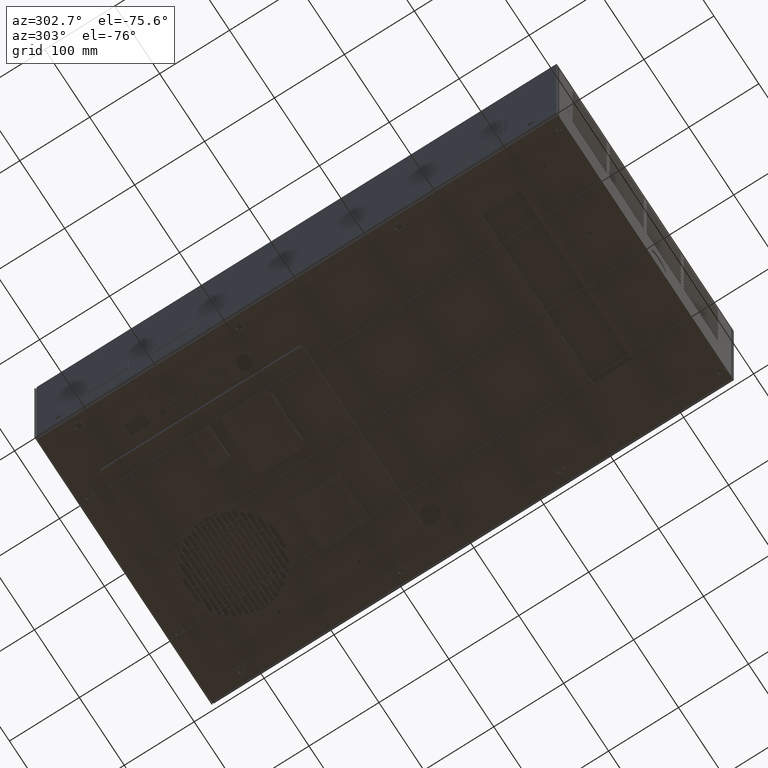
[diagram: clean part render]
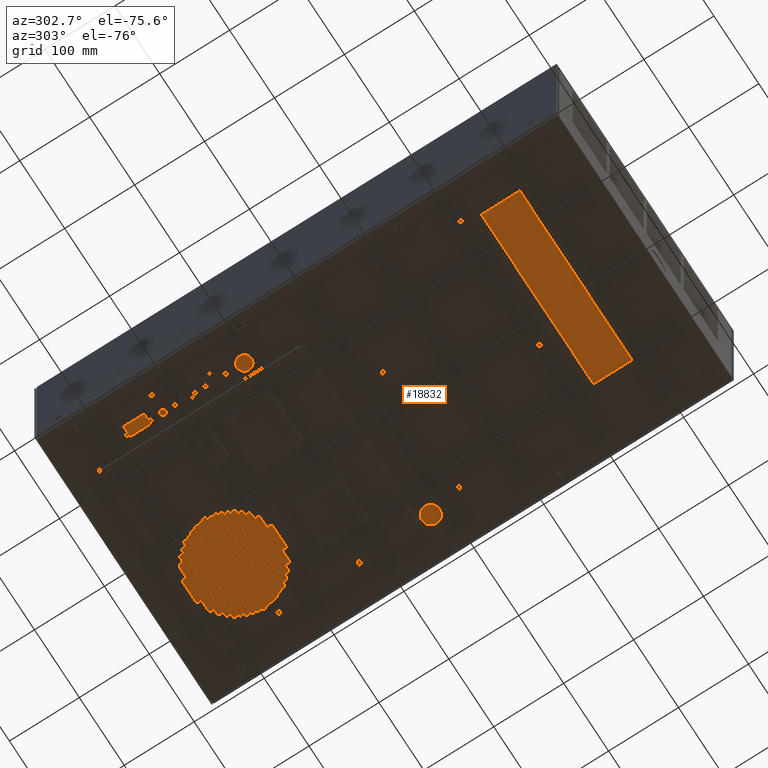
[diagram: same view with one face highlighted and labeled with its STEP entity id]
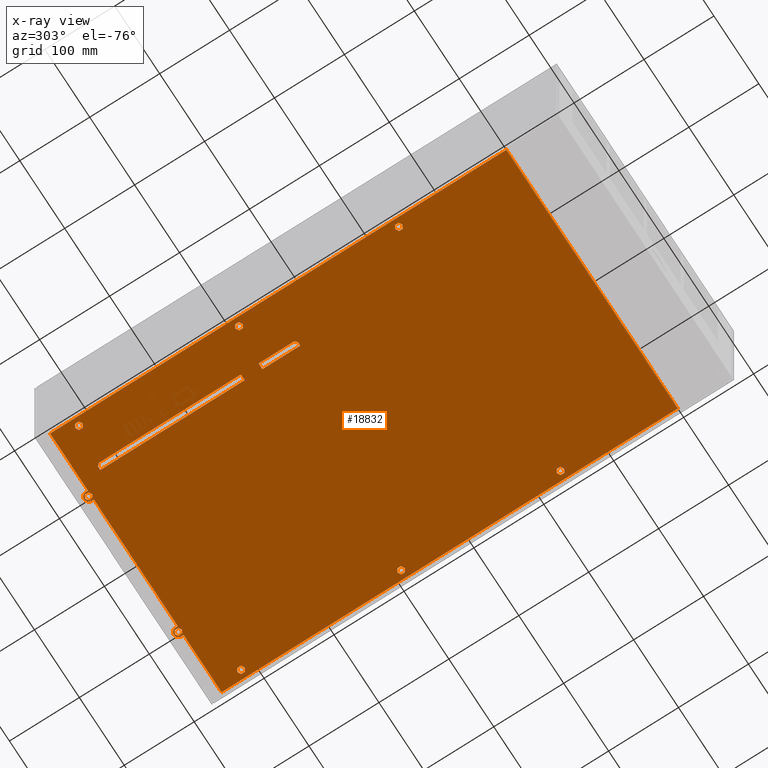
[diagram: x-ray of the same camera — body ghosted, the highlighted face saturated]
A machine part, auxiliary view. The second image highlights one B-rep face of the part: STEP entity #18832.
The next image is the same camera in x-ray: the body ghosted, the highlighted face saturated — about 0% of this face is hidden behind the body in this view.
In plain terms, the highlighted planar face has unit normal (0, -0, 1).
Its self-contained STEP definition (entity closure, byte-faithful):
#38 = EDGE_CURVE ( 'NONE', #55716, #61288, #38615, .T. ) ;
#46 = CARTESIAN_POINT ( 'NONE',  ( -4.097833821382889319, 14.21838520169157682, -4.587826771653433333 ) ) ;
#52 = CIRCLE ( 'NONE', #51861, 0.1984251968503938091 ) ;
#106 = VERTEX_POINT ( 'NONE', #56986 ) ;
#118 = DIRECTION ( 'NONE',  ( 1.000000000000000000, 0.000000000000000000, 0.000000000000000000 ) ) ;
#159 = DIRECTION ( 'NONE',  ( 1.000000000000000000, 0.000000000000000000, 0.000000000000000000 ) ) ;
#172 = DIRECTION ( 'NONE',  ( -0.8660254037844385966, -0.4999999999999998335, -6.955330476064117422E-15 ) ) ;
#230 = CARTESIAN_POINT ( 'NONE',  ( 3.930955916420503904, 14.30774400634990151, -4.587826771653433333 ) ) ;
#306 = CARTESIAN_POINT ( 'NONE',  ( -4.728992295873739593, 4.814522308075008361, -4.587826771654433422 ) ) ;
#378 = DIRECTION ( 'NONE',  ( 1.000000000000000000, 0.000000000000000000, 0.000000000000000000 ) ) ;
#380 = LINE ( 'NONE', #52071, #21532 ) ;
#403 = VERTEX_POINT ( 'NONE', #21972 ) ;
#492 = ORIENTED_EDGE ( 'NONE', *, *, #49037, .T. ) ;
#590 = ORIENTED_EDGE ( 'NONE', *, *, #13466, .T. ) ;
#658 = LINE ( 'NONE', #16846, #30731 ) ;
#715 = AXIS2_PLACEMENT_3D ( 'NONE', #19818, #18801, #3942 ) ;
#747 = LINE ( 'NONE', #31512, #50560 ) ;
#798 = DIRECTION ( 'NONE',  ( -1.000000000000000000, 6.299999999999999661E-14, 8.763716399840789270E-28 ) ) ;
#820 = EDGE_CURVE ( 'NONE', #9064, #16506, #32391, .T. ) ;
#825 = VECTOR ( 'NONE', #18916, 39.37007874015748143 ) ;
#931 = ORIENTED_EDGE ( 'NONE', *, *, #28773, .T. ) ;
#965 = LINE ( 'NONE', #51331, #60197 ) ;
#1002 = DIRECTION ( 'NONE',  ( -0.8660254037844385966, -0.4999999999999998335, -6.955330476064117422E-15 ) ) ;
#1005 = CARTESIAN_POINT ( 'NONE',  ( 10.92113215381425384, 28.79409265864877909, -4.587826771653228164 ) ) ;
#1060 = EDGE_CURVE ( 'NONE', #19360, #62354, #20149, .T. ) ;
#1064 = CARTESIAN_POINT ( 'NONE',  ( 16.15526838318027458, 17.24199232865907305, -4.587826771653394253 ) ) ;
#1325 = EDGE_CURVE ( 'NONE', #3547, #56764, #64510, .T. ) ;
#1355 = EDGE_CURVE ( 'NONE', #20188, #44396, #19739, .T. ) ;
#1360 = VERTEX_POINT ( 'NONE', #14995 ) ;
#1446 = EDGE_CURVE ( 'NONE', #19025, #33145, #62350, .T. ) ;
#1461 = FACE_OUTER_BOUND ( 'NONE', #43689, .T. ) ;
#1479 = CARTESIAN_POINT ( 'NONE',  ( 7.524768921527992482, 4.814522308074228540, -4.587826771653543467 ) ) ;
#1585 = EDGE_CURVE ( 'NONE', #11103, #24488, #43049, .T. ) ;
#1752 = VERTEX_POINT ( 'NONE', #30466 ) ;
#1781 = EDGE_CURVE ( 'NONE', #5272, #34013, #55946, .T. ) ;
#1782 = FACE_BOUND ( 'NONE', #64360, .T. ) ;
#1816 = VERTEX_POINT ( 'NONE', #58150 ) ;
#2081 = CARTESIAN_POINT ( 'NONE',  ( -7.091903519410512224, 3.615658442772952785, -4.587826771653543467 ) ) ;
#2242 = ORIENTED_EDGE ( 'NONE', *, *, #28322, .T. ) ;
#2245 = VERTEX_POINT ( 'NONE', #62729 ) ;
#2255 = CARTESIAN_POINT ( 'NONE',  ( 7.268923252243031818, -5.288959216295590515, -4.587826771653709557 ) ) ;
#2259 = ORIENTED_EDGE ( 'NONE', *, *, #48742, .T. ) ;
#2430 = VECTOR ( 'NONE', #10633, 39.37007874015748143 ) ;
#2567 = ORIENTED_EDGE ( 'NONE', *, *, #50038, .T. ) ;
#2874 = AXIS2_PLACEMENT_3D ( 'NONE', #53210, #38002, #17689 ) ;
#2950 = AXIS2_PLACEMENT_3D ( 'NONE', #47466, #11265, #57907 ) ;
#2985 = EDGE_CURVE ( 'NONE', #16733, #38362, #14255, .T. ) ;
#3174 = CIRCLE ( 'NONE', #40969, 0.1984251968503932817 ) ;
#3251 = ORIENTED_EDGE ( 'NONE', *, *, #16141, .T. ) ;
#3277 = LINE ( 'NONE', #66108, #64595 ) ;
#3418 = VERTEX_POINT ( 'NONE', #47140 ) ;
#3526 = CARTESIAN_POINT ( 'NONE',  ( -7.269068873741220571, 32.19045589093369841, -4.587826771653189084 ) ) ;
#3547 = VERTEX_POINT ( 'NONE', #21014 ) ;
#3671 = CARTESIAN_POINT ( 'NONE',  ( 7.102190968778741009, 12.61565844277275517, -4.587826771653464419 ) ) ;
#3839 = LINE ( 'NONE', #55541, #50488 ) ;
#3905 = VECTOR ( 'NONE', #61937, 39.37007874015748143 ) ;
#3915 = CARTESIAN_POINT ( 'NONE',  ( -8.939822809904429235, 3.672946486211338790, -4.587826771653543467 ) ) ;
#3934 = LINE ( 'NONE', #34355, #62284 ) ;
#3942 = DIRECTION ( 'NONE',  ( 1.000000000000000000, 0.000000000000000000, 0.000000000000000000 ) ) ;
#4004 = ORIENTED_EDGE ( 'NONE', *, *, #66880, .T. ) ;
#4056 = DIRECTION ( 'NONE',  ( 0.8660254037844489217, 0.4999999999999819589, 6.955330476063881552E-15 ) ) ;
#4102 = VECTOR ( 'NONE', #4056, 39.37007874015748854 ) ;
#4213 = AXIS2_PLACEMENT_3D ( 'NONE', #34167, #39582, #49751 ) ;
#4260 = VERTEX_POINT ( 'NONE', #18184 ) ;
#4271 = DIRECTION ( 'NONE',  ( 1.000000000000000000, 0.000000000000000000, 0.000000000000000000 ) ) ;
#4375 = VERTEX_POINT ( 'NONE', #29000 ) ;
#4448 = DIRECTION ( 'NONE',  ( 0.000000000000000000, -1.391066095212824115E-14, 1.000000000000000000 ) ) ;
#4554 = EDGE_CURVE ( 'NONE', #58163, #4260, #50895, .T. ) ;
#4567 = VERTEX_POINT ( 'NONE', #46836 ) ;
#4574 = LINE ( 'NONE', #25182, #17995 ) ;
#4615 = CARTESIAN_POINT ( 'NONE',  ( 4.198116953025818887, 14.10963490649982255, -4.587826771653440439 ) ) ;
#4633 = EDGE_CURVE ( 'NONE', #42011, #59889, #48195, .T. ) ;
#4658 = EDGE_CURVE ( 'NONE', #12087, #14766, #51454, .T. ) ;
#4852 = CARTESIAN_POINT ( 'NONE',  ( -3.675898795005708930, 13.98318372539761789, -4.587826771653440439 ) ) ;
#4858 = CARTESIAN_POINT ( 'NONE',  ( 7.102190968778425706, 3.603611370226767807, -4.587826771653543467 ) ) ;
#4908 = ORIENTED_EDGE ( 'NONE', *, *, #25860, .T. ) ;
#4969 = EDGE_CURVE ( 'NONE', #30970, #37301, #16947, .T. ) ;
#4971 = LINE ( 'NONE', #10705, #48946 ) ;
#5107 = ORIENTED_EDGE ( 'NONE', *, *, #39284, .F. ) ;
#5221 = EDGE_CURVE ( 'NONE', #50689, #25105, #51507, .T. ) ;
#5272 = VERTEX_POINT ( 'NONE', #31592 ) ;
#5289 = DIRECTION ( 'NONE',  ( 1.000000000000000000, 0.000000000000000000, 0.000000000000000000 ) ) ;
#5307 = CARTESIAN_POINT ( 'NONE',  ( -6.914738165079822529, 32.19045589093369841, -4.587826771653189084 ) ) ;
#5335 = CIRCLE ( 'NONE', #61422, 0.1984251968503932817 ) ;
#5391 = LINE ( 'NONE', #61481, #33731 ) ;
#5398 = CARTESIAN_POINT ( 'NONE',  ( -7.103099201689823339, 3.417549342922842293, -4.587826771653543467 ) ) ;
#5456 = VERTEX_POINT ( 'NONE', #21672 ) ;
#5571 = VECTOR ( 'NONE', #65454, 39.37007874015748143 ) ;
#5645 = EDGE_CURVE ( 'NONE', #2245, #55716, #20603, .T. ) ;
#5750 = VERTEX_POINT ( 'NONE', #24664 ) ;
#5766 = DIRECTION ( 'NONE',  ( 6.299999999999999661E-14, 1.000000000000000000, 1.391066095212824273E-14 ) ) ;
#5808 = LINE ( 'NONE', #56188, #58119 ) ;
#5895 = VECTOR ( 'NONE', #798, 39.37007874015748143 ) ;
#5922 = DIRECTION ( 'NONE',  ( -2.065014825802790219E-14, -1.000000000000000000, -1.391066095212824273E-14 ) ) ;
#5953 = DIRECTION ( 'NONE',  ( 0.000000000000000000, -1.391066095212824115E-14, 1.000000000000000000 ) ) ;
#6082 = VERTEX_POINT ( 'NONE', #9031 ) ;
#6208 = DIRECTION ( 'NONE',  ( 0.000000000000000000, -1.391066095212824115E-14, 1.000000000000000000 ) ) ;
#6228 = CIRCLE ( 'NONE', #31031, 0.1984251968503932817 ) ;
#6254 = CARTESIAN_POINT ( 'NONE',  ( 3.764986244369468604, 32.19045589093378368, -4.587826771653189084 ) ) ;
#6258 = ORIENTED_EDGE ( 'NONE', *, *, #41226, .T. ) ;
#6270 = DIRECTION ( 'NONE',  ( 0.000000000000000000, -1.391066095212824115E-14, 1.000000000000000000 ) ) ;
#6271 = LINE ( 'NONE', #62374, #46433 ) ;
#6395 = VERTEX_POINT ( 'NONE', #32983 ) ;
#6438 = VERTEX_POINT ( 'NONE', #2255 ) ;
#6502 = DIRECTION ( 'NONE',  ( 0.8660254037844383745, -0.5000000000000003331, -6.955330476064145032E-15 ) ) ;
#6505 = FACE_BOUND ( 'NONE', #66006, .T. ) ;
#6516 = VECTOR ( 'NONE', #14888, 39.37007874015748143 ) ;
#6571 = CIRCLE ( 'NONE', #42253, 0.1984251968503932817 ) ;
#6610 = DIRECTION ( 'NONE',  ( 0.000000000000000000, -1.391066095212824115E-14, 1.000000000000000000 ) ) ;
#6617 = CARTESIAN_POINT ( 'NONE',  ( 7.102190968778425706, 3.603611370226767807, -4.587826771653543467 ) ) ;
#6658 = ORIENTED_EDGE ( 'NONE', *, *, #4554, .F. ) ;
#6753 = EDGE_CURVE ( 'NONE', #23524, #38528, #66100, .T. ) ;
#6765 = DIRECTION ( 'NONE',  ( -0.8660254037844489217, -0.4999999999999819589, -6.955330476063881552E-15 ) ) ;
#6832 = FACE_BOUND ( 'NONE', #60143, .T. ) ;
#6845 = EDGE_CURVE ( 'NONE', #23856, #27480, #56411, .T. ) ;
#6879 = DIRECTION ( 'NONE',  ( 0.000000000000000000, -1.391066095212824115E-14, 1.000000000000000000 ) ) ;
#6950 = DIRECTION ( 'NONE',  ( -0.8660254037844489217, -0.4999999999999819589, -6.955330476063881552E-15 ) ) ;
#7020 = ORIENTED_EDGE ( 'NONE', *, *, #4658, .T. ) ;
#7230 = CARTESIAN_POINT ( 'NONE',  ( 7.279356323109134053, 3.514252565568287690, -4.587826771653543467 ) ) ;
#7356 = LINE ( 'NONE', #27987, #15916 ) ;
#7422 = VERTEX_POINT ( 'NONE', #19538 ) ;
#7423 = CARTESIAN_POINT ( 'NONE',  ( 15.80667768819752084, 17.84576912341429278, -4.587826771653385372 ) ) ;
#7553 = VECTOR ( 'NONE', #46542, 39.37007874015748143 ) ;
#7579 = DIRECTION ( 'NONE',  ( 1.000000000000000000, 0.000000000000000000, 0.000000000000000000 ) ) ;
#7608 = VERTEX_POINT ( 'NONE', #27402 ) ;
#7693 = DIRECTION ( 'NONE',  ( 1.000000000000000000, -6.299999999999999661E-14, -8.763716399840789270E-28 ) ) ;
#7706 = CARTESIAN_POINT ( 'NONE',  ( -7.103099201689823339, 3.813767542623051732, -4.587826771653543467 ) ) ;
#7790 = AXIS2_PLACEMENT_3D ( 'NONE', #52869, #62672, #47477 ) ;
#7959 = ORIENTED_EDGE ( 'NONE', *, *, #29926, .T. ) ;
#7975 = VERTEX_POINT ( 'NONE', #5398 ) ;
#7978 = VERTEX_POINT ( 'NONE', #21245 ) ;
#8086 = ORIENTED_EDGE ( 'NONE', *, *, #64410, .T. ) ;
#8109 = CARTESIAN_POINT ( 'NONE',  ( 7.102190968778741009, 12.61565844277275517, -4.587826771653464419 ) ) ;
#8129 = DIRECTION ( 'NONE',  ( 2.138391149096334883E-27, 1.391066095212824115E-14, -1.000000000000000000 ) ) ;
#8208 = CARTESIAN_POINT ( 'NONE',  ( -6.920062258187185122, -5.483554155652338835, -4.587826771653709557 ) ) ;
#8246 = AXIS2_PLACEMENT_3D ( 'NONE', #23174, #19100, #43816 ) ;
#8260 = CARTESIAN_POINT ( 'NONE',  ( 7.080562215633032785, -5.180208921103952591, -4.587826771653700675 ) ) ;
#8277 = DIRECTION ( 'NONE',  ( 1.000000000000000000, 0.000000000000000000, 0.000000000000000000 ) ) ;
#8349 = ORIENTED_EDGE ( 'NONE', *, *, #50369, .F. ) ;
#8429 = DIRECTION ( 'NONE',  ( 1.000000000000000000, 0.000000000000000000, 0.000000000000000000 ) ) ;
#8443 = DIRECTION ( 'NONE',  ( 1.000000000000000000, 0.000000000000000000, 0.000000000000000000 ) ) ;
#8449 = LINE ( 'NONE', #65223, #825 ) ;
#8459 = AXIS2_PLACEMENT_3D ( 'NONE', #48937, #22899, #17169 ) ;
#8524 = ORIENTED_EDGE ( 'NONE', *, *, #5221, .T. ) ;
#8690 = VERTEX_POINT ( 'NONE', #66631 ) ;
#8699 = EDGE_CURVE ( 'NONE', #40198, #16733, #16636, .T. ) ;
#8938 = ORIENTED_EDGE ( 'NONE', *, *, #53097, .T. ) ;
#8954 = LINE ( 'NONE', #29578, #53275 ) ;
#8984 = DIRECTION ( 'NONE',  ( 0.000000000000000000, -1.391066095212824115E-14, 1.000000000000000000 ) ) ;
#8985 = ORIENTED_EDGE ( 'NONE', *, *, #66230, .T. ) ;
#9016 = CARTESIAN_POINT ( 'NONE',  ( -3.675898795005708930, 14.10963490649982255, -4.587826771653440439 ) ) ;
#9031 = CARTESIAN_POINT ( 'NONE',  ( 7.268160640830138242, 12.50690814758112346, -4.587826771653464419 ) ) ;
#9064 = VERTEX_POINT ( 'NONE', #24323 ) ;
#9229 = EDGE_CURVE ( 'NONE', #106, #54631, #658, .T. ) ;
#9487 = CARTESIAN_POINT ( 'NONE',  ( -7.091903519410512224, 3.615658442772952785, -4.587826771653543467 ) ) ;
#9637 = ORIENTED_EDGE ( 'NONE', *, *, #61710, .T. ) ;
#9638 = ORIENTED_EDGE ( 'NONE', *, *, #1446, .T. ) ;
#9661 = DIRECTION ( 'NONE',  ( 0.000000000000000000, -1.391066095212824115E-14, 1.000000000000000000 ) ) ;
#9685 = CIRCLE ( 'NONE', #31276, 0.1984251968503932817 ) ;
#9828 = CARTESIAN_POINT ( 'NONE',  ( -4.793313054576142207, 4.814522308075008361, -4.587826771653543467 ) ) ;
#9868 = CARTESIAN_POINT ( 'NONE',  ( -6.914738165079802990, 3.526299638114472668, -4.587826771653543467 ) ) ;
#10019 = EDGE_CURVE ( 'NONE', #22130, #14419, #15717, .T. ) ;
#10166 = ORIENTED_EDGE ( 'NONE', *, *, #23848, .T. ) ;
#10176 = LINE ( 'NONE', #46032, #46676 ) ;
#10266 = VERTEX_POINT ( 'NONE', #46 ) ;
#10271 = CARTESIAN_POINT ( 'NONE',  ( 20.05238270021027702, 10.49199232865897713, -4.587826771653488400 ) ) ;
#10486 = DIRECTION ( 'NONE',  ( 1.000000000000000000, 0.000000000000000000, 0.000000000000000000 ) ) ;
#10495 = CARTESIAN_POINT ( 'NONE',  ( 7.257727569963740244, -5.269567725762432708, -4.587826771653709557 ) ) ;
#10497 = VERTEX_POINT ( 'NONE', #50672 ) ;
#10523 = AXIS2_PLACEMENT_3D ( 'NONE', #4858, #25463, #46113 ) ;
#10575 = CARTESIAN_POINT ( 'NONE',  ( -8.762657455573700460, 3.979805881253047239, -4.587826771653543467 ) ) ;
#10620 = VECTOR ( 'NONE', #23124, 39.37007874015748143 ) ;
#10633 = DIRECTION ( 'NONE',  ( -5.551115123125790591E-16, 1.000000000000000000, 1.391066095212824273E-14 ) ) ;
#10636 = VERTEX_POINT ( 'NONE', #26625 ) ;
#10705 = CARTESIAN_POINT ( 'NONE',  ( -8.591232114921654173, 4.276723280967196672, -4.587826771653543467 ) ) ;
#10717 = AXIS2_PLACEMENT_3D ( 'NONE', #50397, #19639, #40275 ) ;
#10828 = DIRECTION ( 'NONE',  ( 0.000000000000000000, -1.391066095212824115E-14, 1.000000000000000000 ) ) ;
#10909 = FACE_BOUND ( 'NONE', #41626, .T. ) ;
#10938 = EDGE_CURVE ( 'NONE', #43733, #2245, #62212, .T. ) ;
#10963 = EDGE_CURVE ( 'NONE', #7978, #17610, #24019, .T. ) ;
#10998 = DIRECTION ( 'NONE',  ( 1.000000000000000000, 0.000000000000000000, 0.000000000000000000 ) ) ;
#11103 = VERTEX_POINT ( 'NONE', #4615 ) ;
#11104 = ORIENTED_EDGE ( 'NONE', *, *, #15919, .T. ) ;
#11265 = DIRECTION ( 'NONE',  ( 0.000000000000000000, -1.391066095212824115E-14, 1.000000000000000000 ) ) ;
#11445 = AXIS2_PLACEMENT_3D ( 'NONE', #28249, #18430, #8277 ) ;
#11455 = EDGE_CURVE ( 'NONE', #8690, #24488, #38220, .T. ) ;
#11481 = EDGE_CURVE ( 'NONE', #1360, #19360, #14329, .T. ) ;
#11526 = CIRCLE ( 'NONE', #8246, 0.1984251968503932817 ) ;
#11663 = DIRECTION ( 'NONE',  ( 0.000000000000000000, -1.391066095212824115E-14, 1.000000000000000000 ) ) ;
#11735 = EDGE_LOOP ( 'NONE', ( #62377, #15225, #30739, #47264, #8349, #40008 ) ) ;
#11759 = CARTESIAN_POINT ( 'NONE',  ( -3.931864149331495639, 14.10963490649995933, -4.587826771653440439 ) ) ;
#11809 = ORIENTED_EDGE ( 'NONE', *, *, #55991, .T. ) ;
#11852 = LINE ( 'NONE', #1064, #29422 ) ;
#11916 = CIRCLE ( 'NONE', #58351, 0.2559055118110238336 ) ;
#11967 = CARTESIAN_POINT ( 'NONE',  ( -6.914738165079822529, 32.19045589093369841, -4.587826771653189084 ) ) ;
#12022 = AXIS2_PLACEMENT_3D ( 'NONE', #59928, #38328, #32603 ) ;
#12048 = EDGE_CURVE ( 'NONE', #62306, #7975, #4971, .T. ) ;
#12087 = VERTEX_POINT ( 'NONE', #42490 ) ;
#12114 = VECTOR ( 'NONE', #38143, 39.37007874015748854 ) ;
#12233 = EDGE_CURVE ( 'NONE', #21601, #6438, #8954, .T. ) ;
#12245 = AXIS2_PLACEMENT_3D ( 'NONE', #62994, #6879, #47136 ) ;
#12383 = VERTEX_POINT ( 'NONE', #56934 ) ;
#12425 = EDGE_CURVE ( 'NONE', #66744, #59900, #17646, .T. ) ;
#12444 = DIRECTION ( 'NONE',  ( 0.000000000000000000, -1.391066095212824115E-14, 1.000000000000000000 ) ) ;
#12451 = ORIENTED_EDGE ( 'NONE', *, *, #15354, .T. ) ;
#12550 = VERTEX_POINT ( 'NONE', #17677 ) ;
#12697 = VECTOR ( 'NONE', #27794, 39.37007874015748143 ) ;
#12796 = VECTOR ( 'NONE', #41152, 39.37007874015748854 ) ;
#12814 = DIRECTION ( 'NONE',  ( -0.8660254037844385966, 0.4999999999999998335, 6.955330476064117422E-15 ) ) ;
#12942 = CIRCLE ( 'NONE', #41076, 0.1984251968503932817 ) ;
#13024 = CARTESIAN_POINT ( 'NONE',  ( -7.257873191462008045, 12.73645581051051145, -4.587826771653456426 ) ) ;
#13131 = ORIENTED_EDGE ( 'NONE', *, *, #44637, .T. ) ;
#13225 = DIRECTION ( 'NONE',  ( 1.000000000000000000, 0.000000000000000000, 0.000000000000000000 ) ) ;
#13303 = CARTESIAN_POINT ( 'NONE',  ( -5.058438196761850136, 4.814522308075032342, -4.587826771653543467 ) ) ;
#13440 = ORIENTED_EDGE ( 'NONE', *, *, #60950, .T. ) ;
#13466 = EDGE_CURVE ( 'NONE', #44093, #39709, #46922, .T. ) ;
#13472 = LINE ( 'NONE', #29030, #64722 ) ;
#13513 = EDGE_CURVE ( 'NONE', #32054, #37484, #27153, .T. ) ;
#13625 = DIRECTION ( 'NONE',  ( -1.000000000000000000, 0.000000000000000000, 0.000000000000000000 ) ) ;
#13629 = CARTESIAN_POINT ( 'NONE',  ( 7.524768921527795307, 1.689522308074230317, -4.587826771653606528 ) ) ;
#13720 = ORIENTED_EDGE ( 'NONE', *, *, #1585, .T. ) ;
#13914 = CARTESIAN_POINT ( 'NONE',  ( 7.524768921527932974, 3.814522308074232537, -4.587826771653543467 ) ) ;
#14019 = ORIENTED_EDGE ( 'NONE', *, *, #45242, .T. ) ;
#14226 = EDGE_CURVE ( 'NONE', #6395, #60445, #5391, .T. ) ;
#14255 = LINE ( 'NONE', #54476, #51747 ) ;
#14289 = CARTESIAN_POINT ( 'NONE',  ( 7.102190968778741009, 12.61565844277275517, -4.587826771653464419 ) ) ;
#14329 = CIRCLE ( 'NONE', #52123, 0.1984251968503932817 ) ;
#14399 = DIRECTION ( 'NONE',  ( -0.8660254037844385966, 0.4999999999999998335, 6.955330476064117422E-15 ) ) ;
#14419 = VERTEX_POINT ( 'NONE', #47632 ) ;
#14439 = EDGE_CURVE ( 'NONE', #59900, #7608, #60062, .T. ) ;
#14447 = VERTEX_POINT ( 'NONE', #34039 ) ;
#14452 = EDGE_CURVE ( 'NONE', #32054, #36409, #33394, .T. ) ;
#14453 = ORIENTED_EDGE ( 'NONE', *, *, #12048, .T. ) ;
#14454 = CARTESIAN_POINT ( 'NONE',  ( -1.288693233242618197, 16.92509164828322810, -4.587826771653401359 ) ) ;
#14613 = CARTESIAN_POINT ( 'NONE',  ( 7.102190968778425706, 3.603611370226767807, -4.587826771653543467 ) ) ;
#14614 = DIRECTION ( 'NONE',  ( 0.000000000000000000, -1.391066095212824115E-14, 1.000000000000000000 ) ) ;
#14650 = CARTESIAN_POINT ( 'NONE',  ( -12.31118107762100422, -2.166417323991117971, -4.587826771653661595 ) ) ;
#14690 = DIRECTION ( 'NONE',  ( 0.000000000000000000, -1.391066095212824115E-14, 1.000000000000000000 ) ) ;
#14766 = VERTEX_POINT ( 'NONE', #17099 ) ;
#14847 = CARTESIAN_POINT ( 'NONE',  ( 15.98384304252821053, 17.53890972837255902, -4.587826771653394253 ) ) ;
#14888 = DIRECTION ( 'NONE',  ( 5.551115123125779621E-17, -1.000000000000000000, -1.391066095212824273E-14 ) ) ;
#14995 = CARTESIAN_POINT ( 'NONE',  ( -7.103099201689862419, -5.582450657077244749, -4.587826771653709557 ) ) ;
#15169 = CARTESIAN_POINT ( 'NONE',  ( -7.091903519410512224, 3.615658442772952785, -4.587826771653543467 ) ) ;
#15225 = ORIENTED_EDGE ( 'NONE', *, *, #14452, .T. ) ;
#15234 = CARTESIAN_POINT ( 'NONE',  ( 6.925025614447717359, 3.514252565568291242, -4.587826771653543467 ) ) ;
#15314 = CARTESIAN_POINT ( 'NONE',  ( 7.268160640829843366, 3.712361665418393297, -4.587826771653543467 ) ) ;
#15340 = DIRECTION ( 'NONE',  ( 0.000000000000000000, -1.391066095212824115E-14, 1.000000000000000000 ) ) ;
#15347 = CARTESIAN_POINT ( 'NONE',  ( -7.514481472171063103, 13.98318372539761789, -4.587826771653440439 ) ) ;
#15354 = EDGE_CURVE ( 'NONE', #33145, #49988, #13472, .T. ) ;
#15433 = CARTESIAN_POINT ( 'NONE',  ( 7.102190968778741009, 12.61565844277275517, -4.587826771653464419 ) ) ;
#15509 = ORIENTED_EDGE ( 'NONE', *, *, #10963, .T. ) ;
#15553 = ORIENTED_EDGE ( 'NONE', *, *, #31847, .T. ) ;
#15717 = CIRCLE ( 'NONE', #42718, 0.1984251968503932817 ) ;
#15916 = VECTOR ( 'NONE', #48630, 39.37007874015748143 ) ;
#15919 = EDGE_CURVE ( 'NONE', #32232, #52077, #12942, .T. ) ;
#16015 = VERTEX_POINT ( 'NONE', #61379 ) ;
#16046 = CARTESIAN_POINT ( 'NONE',  ( 7.274032230002106303, 12.71487104119793443, -4.587826771653456426 ) ) ;
#16141 = EDGE_CURVE ( 'NONE', #50057, #7978, #6271, .T. ) ;
#16184 = ORIENTED_EDGE ( 'NONE', *, *, #62709, .T. ) ;
#16376 = DIRECTION ( 'NONE',  ( -0.7071067811865030528, 0.7071067811865919817, 9.836322690037410908E-15 ) ) ;
#16399 = CIRCLE ( 'NONE', #50962, 0.1984251968503938091 ) ;
#16503 = VECTOR ( 'NONE', #58166, 39.37007874015748143 ) ;
#16506 = VERTEX_POINT ( 'NONE', #40367 ) ;
#16513 = EDGE_CURVE ( 'NONE', #35738, #64549, #50169, .T. ) ;
#16563 = CARTESIAN_POINT ( 'NONE',  ( 7.263599159135688765, -5.279105422528866498, -4.587826771653709557 ) ) ;
#16636 = CIRCLE ( 'NONE', #28493, 0.1984251968503932817 ) ;
#16660 = VECTOR ( 'NONE', #25362, 39.37007874015748854 ) ;
#16718 = CIRCLE ( 'NONE', #44822, 0.1984251968503938091 ) ;
#16733 = VERTEX_POINT ( 'NONE', #45696 ) ;
#16802 = CARTESIAN_POINT ( 'NONE',  ( 7.274032230001791888, 3.702823968651960396, -4.587826771653543467 ) ) ;
#16826 = DIRECTION ( 'NONE',  ( 0.000000000000000000, -1.391066095212824115E-14, 1.000000000000000000 ) ) ;
#16846 = CARTESIAN_POINT ( 'NONE',  ( 12.25293753071728453, 24.00102763306858478, -4.587826771653307212 ) ) ;
#16897 = VECTOR ( 'NONE', #16376, 39.37007874015748143 ) ;
#16947 = CIRCLE ( 'NONE', #17996, 0.1984251968503932817 ) ;
#16961 = CARTESIAN_POINT ( 'NONE',  ( 6.936221296727323349, 12.50690814758112346, -4.587826771653464419 ) ) ;
#17065 = DIRECTION ( 'NONE',  ( 0.000000000000000000, -1.391066095212824115E-14, 1.000000000000000000 ) ) ;
#17099 = CARTESIAN_POINT ( 'NONE',  ( 4.108121270751213139, 14.21838520169141695, -4.587826771653433333 ) ) ;
#17127 = VERTEX_POINT ( 'NONE', #39127 ) ;
#17169 = DIRECTION ( 'NONE',  ( 1.000000000000000000, 0.000000000000000000, 0.000000000000000000 ) ) ;
#17245 = LINE ( 'NONE', #7423, #48402 ) ;
#17259 = CARTESIAN_POINT ( 'NONE',  ( -7.091903519410551304, -5.384341557227126707, -4.587826771653709557 ) ) ;
#17308 = CARTESIAN_POINT ( 'NONE',  ( -4.688901262458700536, 11.03575858537661425, -4.587826771653480407 ) ) ;
#17610 = VERTEX_POINT ( 'NONE', #51819 ) ;
#17646 = CIRCLE ( 'NONE', #12245, 0.1984251968503932817 ) ;
#17652 = DIRECTION ( 'NONE',  ( 0.000000000000000000, -1.391066095212824115E-14, 1.000000000000000000 ) ) ;
#17677 = CARTESIAN_POINT ( 'NONE',  ( -6.914738165079842069, -5.294982752568661688, -4.587826771653709557 ) ) ;
#17689 = DIRECTION ( 'NONE',  ( 1.000000000000000000, 0.000000000000000000, 0.000000000000000000 ) ) ;
#17732 = CARTESIAN_POINT ( 'NONE',  ( 3.686305929403740134, 14.10963490649982255, -4.587826771653440439 ) ) ;
#17740 = DIRECTION ( 'NONE',  ( 1.000000000000000000, 0.000000000000000000, 0.000000000000000000 ) ) ;
#17816 = ORIENTED_EDGE ( 'NONE', *, *, #58607, .T. ) ;
#17858 = ORIENTED_EDGE ( 'NONE', *, *, #57103, .T. ) ;
#17873 = DIRECTION ( 'NONE',  ( 0.8660254037844383745, -0.5000000000000003331, -6.955330476064145032E-15 ) ) ;
#17995 = VECTOR ( 'NONE', #55948, 39.37007874015748143 ) ;
#17996 = AXIS2_PLACEMENT_3D ( 'NONE', #14613, #55856, #50810 ) ;
#17999 = DIRECTION ( 'NONE',  ( 1.000000000000000000, 0.000000000000000000, 0.000000000000000000 ) ) ;
#18087 = CIRCLE ( 'NONE', #32135, 0.1984251968503938091 ) ;
#18114 = CARTESIAN_POINT ( 'NONE',  ( -5.058438196760118188, 32.19045589093449422, -4.587826771653189084 ) ) ;
#18184 = CARTESIAN_POINT ( 'NONE',  ( -5.058438196762046424, 1.814522308075027679, -4.587826771653606528 ) ) ;
#18212 = CIRCLE ( 'NONE', #8459, 0.1984251968503932817 ) ;
#18273 = ORIENTED_EDGE ( 'NONE', *, *, #8699, .T. ) ;
#18362 = ORIENTED_EDGE ( 'NONE', *, *, #12233, .T. ) ;
#18430 = DIRECTION ( 'NONE',  ( 0.000000000000000000, -1.391066095212824115E-14, 1.000000000000000000 ) ) ;
#18562 = EDGE_CURVE ( 'NONE', #12383, #58163, #44433, .T. ) ;
#18565 = DIRECTION ( 'NONE',  ( 0.000000000000000000, -1.391066095212824115E-14, 1.000000000000000000 ) ) ;
#18608 = VECTOR ( 'NONE', #7693, 39.37007874015748143 ) ;
#18772 = AXIS2_PLACEMENT_3D ( 'NONE', #62534, #51074, #378 ) ;
#18784 = CIRCLE ( 'NONE', #52243, 0.1984251968503932817 ) ;
#18798 = CARTESIAN_POINT ( 'NONE',  ( -7.269068873741220571, 3.526299638114468671, -4.587826771653543467 ) ) ;
#18801 = DIRECTION ( 'NONE',  ( 0.000000000000000000, -1.391066095212824115E-14, 1.000000000000000000 ) ) ;
#18822 = VECTOR ( 'NONE', #12814, 39.37007874015748854 ) ;
#18832 = ADVANCED_FACE ( 'NONE', ( #21383, #10909, #31542, #26455, #1782, #47089, #52818, #62625, #6505, #6832, #1461 ), #36944, .F. ) ;
#18861 = EDGE_CURVE ( 'NONE', #30131, #55369, #59399, .T. ) ;
#18916 = DIRECTION ( 'NONE',  ( 6.299999999999999661E-14, 1.000000000000000000, -4.908933904787180437E-14 ) ) ;
#18932 = LINE ( 'NONE', #23688, #28402 ) ;
#18950 = EDGE_CURVE ( 'NONE', #403, #65290, #55468, .T. ) ;
#19025 = VERTEX_POINT ( 'NONE', #15234 ) ;
#19036 = CARTESIAN_POINT ( 'NONE',  ( 7.268160640830157782, 12.72440873796437089, -4.587826771653456426 ) ) ;
#19100 = DIRECTION ( 'NONE',  ( 0.000000000000000000, -1.391066095212824115E-14, 1.000000000000000000 ) ) ;
#19111 = LINE ( 'NONE', #3915, #26017 ) ;
#19301 = CARTESIAN_POINT ( 'NONE',  ( 7.102190968778425706, 3.603611370226767807, -4.587826771653543467 ) ) ;
#19360 = VERTEX_POINT ( 'NONE', #19792 ) ;
#19411 = EDGE_CURVE ( 'NONE', #5750, #40198, #19111, .T. ) ;
#19432 = CARTESIAN_POINT ( 'NONE',  ( -3.257197170250520024, 13.51554281448635919, -4.587826771653448432 ) ) ;
#19512 = AXIS2_PLACEMENT_3D ( 'NONE', #43680, #65257, #13225 ) ;
#19528 = EDGE_CURVE ( 'NONE', #40078, #58242, #6571, .T. ) ;
#19538 = CARTESIAN_POINT ( 'NONE',  ( 6.914592543581614237, -5.467676825612535652, -4.587826771653709557 ) ) ;
#19575 = CARTESIAN_POINT ( 'NONE',  ( -7.269068873741299619, 12.71706431997736431, -4.587826771653456426 ) ) ;
#19636 = LINE ( 'NONE', #55134, #57845 ) ;
#19639 = DIRECTION ( 'NONE',  ( 0.000000000000000000, -1.391066095212824115E-14, 1.000000000000000000 ) ) ;
#19648 = DIRECTION ( 'NONE',  ( 1.000000000000000000, 0.000000000000000000, 0.000000000000000000 ) ) ;
#19720 = EDGE_CURVE ( 'NONE', #66860, #11103, #59527, .T. ) ;
#19739 = LINE ( 'NONE', #14650, #63412 ) ;
#19792 = CARTESIAN_POINT ( 'NONE',  ( -7.080707837131259730, -5.582450657077244749, -4.587826771653709557 ) ) ;
#19807 = DIRECTION ( 'NONE',  ( -0.8660254037844385966, -0.4999999999999998335, -6.955330476064117422E-15 ) ) ;
#19818 = CARTESIAN_POINT ( 'NONE',  ( -3.931864149331495639, 14.10963490649995933, -4.587826771653440439 ) ) ;
#19902 = CARTESIAN_POINT ( 'NONE',  ( 6.914592543581614237, 32.19045589093369841, -4.587826771653189084 ) ) ;
#20027 = ORIENTED_EDGE ( 'NONE', *, *, #43775, .T. ) ;
#20057 = DIRECTION ( 'NONE',  ( 0.8660254037844281605, -0.5000000000000180966, -6.955330476064382479E-15 ) ) ;
#20087 = VERTEX_POINT ( 'NONE', #28422 ) ;
#20149 = LINE ( 'NONE', #61732, #12796 ) ;
#20156 = DIRECTION ( 'NONE',  ( 8.326672684688679970E-16, 1.000000000000000000, 1.391066095212824273E-14 ) ) ;
#20188 = VERTEX_POINT ( 'NONE', #65931 ) ;
#20241 = AXIS2_PLACEMENT_3D ( 'NONE', #8109, #49722, #34133 ) ;
#20260 = CIRCLE ( 'NONE', #26726, 0.1984251968503932817 ) ;
#20289 = LINE ( 'NONE', #34154, #28125 ) ;
#20384 = ORIENTED_EDGE ( 'NONE', *, *, #56051, .T. ) ;
#20461 = CARTESIAN_POINT ( 'NONE',  ( -13.95480142904628096, 10.71088554036037266, -4.587826771653480407 ) ) ;
#20507 = VECTOR ( 'NONE', #20156, 39.37007874015748143 ) ;
#20556 = DIRECTION ( 'NONE',  ( 1.000000000000000000, 0.000000000000000000, 0.000000000000000000 ) ) ;
#20603 = LINE ( 'NONE', #46318, #46188 ) ;
#20827 = DIRECTION ( 'NONE',  ( 5.551115123125779621E-17, 1.000000000000000000, 1.391066095212824273E-14 ) ) ;
#20873 = CARTESIAN_POINT ( 'NONE',  ( 7.090995286499114592, 3.801720470076869862, -4.587826771653543467 ) ) ;
#20944 = CARTESIAN_POINT ( 'NONE',  ( 6.936221296727008934, 3.712361665418393297, -4.587826771653543467 ) ) ;
#21014 = CARTESIAN_POINT ( 'NONE',  ( 3.953347280979102596, 14.30774400634990151, -4.587826771653433333 ) ) ;
#21162 = VERTEX_POINT ( 'NONE', #36267 ) ;
#21164 = VERTEX_POINT ( 'NONE', #32530 ) ;
#21245 = CARTESIAN_POINT ( 'NONE',  ( -6.914738165079882037, 12.71706431997736431, -4.587826771653456426 ) ) ;
#21334 = EDGE_CURVE ( 'NONE', #52785, #66744, #52877, .T. ) ;
#21383 = FACE_BOUND ( 'NONE', #11735, .T. ) ;
#21480 = DIRECTION ( 'NONE',  ( 0.000000000000000000, -1.391066095212824115E-14, 1.000000000000000000 ) ) ;
#21532 = VECTOR ( 'NONE', #5766, 39.37007874015748143 ) ;
#21601 = VERTEX_POINT ( 'NONE', #34574 ) ;
#21663 = DIRECTION ( 'NONE',  ( 0.000000000000000000, -1.391066095212824115E-14, 1.000000000000000000 ) ) ;
#21672 = CARTESIAN_POINT ( 'NONE',  ( 6.925788225860905811, -5.269567725762432708, -4.587826771653709557 ) ) ;
#21756 = ORIENTED_EDGE ( 'NONE', *, *, #36146, .T. ) ;
#21819 = CARTESIAN_POINT ( 'NONE',  ( -4.728992295873975849, 3.814522308075011914, -4.587826771654087032 ) ) ;
#21832 = CARTESIAN_POINT ( 'NONE',  ( 3.942151598699803028, 14.10963490649980123, -4.587826771653440439 ) ) ;
#21934 = DIRECTION ( 'NONE',  ( 0.7071067811865884289, 0.7071067811865064945, 9.836322690036213417E-15 ) ) ;
#21937 = ORIENTED_EDGE ( 'NONE', *, *, #55255, .T. ) ;
#21972 = CARTESIAN_POINT ( 'NONE',  ( -7.269068873741220571, 3.705017247431425353, -4.587826771653543467 ) ) ;
#21973 = ORIENTED_EDGE ( 'NONE', *, *, #29185, .T. ) ;
#22046 = DIRECTION ( 'NONE',  ( 0.000000000000000000, -1.391066095212824273E-14, 1.000000000000000000 ) ) ;
#22113 = VECTOR ( 'NONE', #30708, 39.37007874015748143 ) ;
#22130 = VERTEX_POINT ( 'NONE', #20944 ) ;
#22172 = CARTESIAN_POINT ( 'NONE',  ( -3.943059831610787658, 14.30774400635005961, -4.587826771653433333 ) ) ;
#22252 = ORIENTED_EDGE ( 'NONE', *, *, #55364, .T. ) ;
#22353 = AXIS2_PLACEMENT_3D ( 'NONE', #66391, #14690, #30262 ) ;
#22536 = LINE ( 'NONE', #18114, #37028 ) ;
#22587 = AXIS2_PLACEMENT_3D ( 'NONE', #61539, #10828, #10486 ) ;
#22699 = EDGE_CURVE ( 'NONE', #4260, #17127, #22536, .T. ) ;
#22826 = CARTESIAN_POINT ( 'NONE',  ( 3.686305929403740134, 14.10963490649982255, -4.587826771653440439 ) ) ;
#22899 = DIRECTION ( 'NONE',  ( 0.000000000000000000, -1.391066095212824115E-14, 1.000000000000000000 ) ) ;
#23025 = DIRECTION ( 'NONE',  ( 1.000000000000000000, -1.537231880250215641E-13, 0.000000000000000000 ) ) ;
#23124 = DIRECTION ( 'NONE',  ( -1.332267629550188046E-15, -1.000000000000000000, -1.391066095212824273E-14 ) ) ;
#23142 = DIRECTION ( 'NONE',  ( 1.000000000000000000, 0.000000000000000000, 0.000000000000000000 ) ) ;
#23146 = AXIS2_PLACEMENT_3D ( 'NONE', #63956, #17652, #27470 ) ;
#23154 = EDGE_CURVE ( 'NONE', #30442, #14447, #18932, .T. ) ;
#23174 = CARTESIAN_POINT ( 'NONE',  ( 7.091757897912323472, -5.378318020954047540, -4.587826771653709557 ) ) ;
#23192 = ORIENTED_EDGE ( 'NONE', *, *, #18950, .T. ) ;
#23271 = EDGE_CURVE ( 'NONE', #6438, #23856, #37072, .T. ) ;
#23317 = VERTEX_POINT ( 'NONE', #19036 ) ;
#23488 = ORIENTED_EDGE ( 'NONE', *, *, #22699, .F. ) ;
#23524 = VERTEX_POINT ( 'NONE', #46777 ) ;
#23668 = EDGE_CURVE ( 'NONE', #59926, #32363, #40894, .T. ) ;
#23688 = CARTESIAN_POINT ( 'NONE',  ( 14.54692241488673154, 20.02772926189149771, -4.587826771653354285 ) ) ;
#23848 = EDGE_CURVE ( 'NONE', #5456, #33639, #63583, .T. ) ;
#23856 = VERTEX_POINT ( 'NONE', #16563 ) ;
#23873 = LINE ( 'NONE', #49921, #27893 ) ;
#24019 = CIRCLE ( 'NONE', #55349, 0.1984251968503932817 ) ;
#24099 = VERTEX_POINT ( 'NONE', #19575 ) ;
#24122 = CARTESIAN_POINT ( 'NONE',  ( 6.936221296727008934, 3.494861075035141873, -4.587826771653543467 ) ) ;
#24145 = EDGE_CURVE ( 'NONE', #32363, #45068, #965, .T. ) ;
#24159 = ORIENTED_EDGE ( 'NONE', *, *, #19720, .T. ) ;
#24323 = CARTESIAN_POINT ( 'NONE',  ( 4.119316953030511819, 14.02027610184132023, -4.587826771653440439 ) ) ;
#24378 = EDGE_CURVE ( 'NONE', #32172, #50689, #42537, .T. ) ;
#24388 = ORIENTED_EDGE ( 'NONE', *, *, #65615, .T. ) ;
#24403 = VECTOR ( 'NONE', #40066, 39.37007874015748854 ) ;
#24488 = VERTEX_POINT ( 'NONE', #54646 ) ;
#24507 = CIRCLE ( 'NONE', #2950, 0.1984251968503938091 ) ;
#24567 = ORIENTED_EDGE ( 'NONE', *, *, #24968, .T. ) ;
#24599 = LINE ( 'NONE', #14454, #49424 ) ;
#24608 = CARTESIAN_POINT ( 'NONE',  ( -3.931864149331495639, 14.10963490649995933, -4.587826771653440439 ) ) ;
#24664 = CARTESIAN_POINT ( 'NONE',  ( 6.925788225860905811, -5.487068316145685465, -4.587826771653709557 ) ) ;
#24666 = LINE ( 'NONE', #14847, #4102 ) ;
#24766 = ORIENTED_EDGE ( 'NONE', *, *, #2985, .T. ) ;
#24767 = CARTESIAN_POINT ( 'NONE',  ( -7.080707837131259730, -5.186232457377023763, -4.587826771653700675 ) ) ;
#24891 = DIRECTION ( 'NONE',  ( 0.000000000000000000, -1.391066095212824115E-14, 1.000000000000000000 ) ) ;
#24968 = EDGE_CURVE ( 'NONE', #14766, #3547, #34864, .T. ) ;
#25103 = CARTESIAN_POINT ( 'NONE',  ( -7.091903519410512224, 3.615658442772952785, -4.587826771653543467 ) ) ;
#25105 = VERTEX_POINT ( 'NONE', #32944 ) ;
#25182 = CARTESIAN_POINT ( 'NONE',  ( 7.524768921528504961, 12.93952230807423298, -4.587826771653456426 ) ) ;
#25234 = LINE ( 'NONE', #39804, #46601 ) ;
#25326 = DIRECTION ( 'NONE',  ( 1.000000000000000000, 0.000000000000000000, 0.000000000000000000 ) ) ;
#25362 = DIRECTION ( 'NONE',  ( 0.8660254037844489217, 0.4999999999999819589, 6.955330476063881552E-15 ) ) ;
#25460 = CARTESIAN_POINT ( 'NONE',  ( -1.145594175844673268, 17.17294648621167497, -4.587826771653394253 ) ) ;
#25463 = DIRECTION ( 'NONE',  ( 0.000000000000000000, -1.391066095212824115E-14, 1.000000000000000000 ) ) ;
#25538 = CARTESIAN_POINT ( 'NONE',  ( -4.187709818627731728, 13.98318372539761789, -4.587826771653440439 ) ) ;
#25744 = ORIENTED_EDGE ( 'NONE', *, *, #52847, .F. ) ;
#25752 = DIRECTION ( 'NONE',  ( 1.000000000000000000, 0.000000000000000000, 0.000000000000000000 ) ) ;
#25860 = EDGE_CURVE ( 'NONE', #65290, #62306, #31286, .T. ) ;
#25897 = CARTESIAN_POINT ( 'NONE',  ( 6.925025614447717359, 32.19045589093369841, -4.587826771653189084 ) ) ;
#25914 = ORIENTED_EDGE ( 'NONE', *, *, #10938, .T. ) ;
#26017 = VECTOR ( 'NONE', #61022, 39.37007874015748143 ) ;
#26072 = DIRECTION ( 'NONE',  ( 2.065014825802790219E-14, 1.000000000000000000, 1.391066095212824273E-14 ) ) ;
#26281 = CARTESIAN_POINT ( 'NONE',  ( -4.187709818627731728, 13.98318372539761789, -4.587826771653440439 ) ) ;
#26455 = FACE_BOUND ( 'NONE', #53870, .T. ) ;
#26625 = CARTESIAN_POINT ( 'NONE',  ( -3.943059831610803645, 13.91152580664984484, -4.587826771653440439 ) ) ;
#26695 = ORIENTED_EDGE ( 'NONE', *, *, #14439, .T. ) ;
#26726 = AXIS2_PLACEMENT_3D ( 'NONE', #62742, #66815, #46890 ) ;
#26769 = CARTESIAN_POINT ( 'NONE',  ( 12.40125312354826903, 23.74413749073019630, -4.587826771653307212 ) ) ;
#26833 = DIRECTION ( 'NONE',  ( 1.000000000000000000, 0.000000000000000000, 0.000000000000000000 ) ) ;
#26837 = AXIS2_PLACEMENT_3D ( 'NONE', #17259, #21663, #57490 ) ;
#26912 = CIRCLE ( 'NONE', #29021, 0.1984251968503932817 ) ;
#26934 = CIRCLE ( 'NONE', #52992, 0.1984251968503932817 ) ;
#26945 = ORIENTED_EDGE ( 'NONE', *, *, #31875, .T. ) ;
#27153 = LINE ( 'NONE', #1479, #5895 ) ;
#27173 = ORIENTED_EDGE ( 'NONE', *, *, #28013, .T. ) ;
#27234 = CARTESIAN_POINT ( 'NONE',  ( -7.257873191461968077, -5.493091852418747756, -4.587826771653709557 ) ) ;
#27396 = DIRECTION ( 'NONE',  ( -0.8660254037844383745, -0.5000000000000003331, -6.955330476064145032E-15 ) ) ;
#27402 = CARTESIAN_POINT ( 'NONE',  ( -7.080707837131220650, 3.813767542623051732, -4.587826771653543467 ) ) ;
#27470 = DIRECTION ( 'NONE',  ( 1.000000000000000000, 0.000000000000000000, 0.000000000000000000 ) ) ;
#27480 = VERTEX_POINT ( 'NONE', #10495 ) ;
#27487 = CARTESIAN_POINT ( 'NONE',  ( -6.925933847359193152, 12.51895522012726403, -4.587826771653464419 ) ) ;
#27530 = AXIS2_PLACEMENT_3D ( 'NONE', #3671, #49989, #65498 ) ;
#27545 = DIRECTION ( 'NONE',  ( 1.000000000000000000, 0.000000000000000000, 0.000000000000000000 ) ) ;
#27593 = VERTEX_POINT ( 'NONE', #52082 ) ;
#27727 = DIRECTION ( 'NONE',  ( 1.000000000000000000, 0.000000000000000000, 0.000000000000000000 ) ) ;
#27742 = CARTESIAN_POINT ( 'NONE',  ( 7.090995286499114592, 3.405502270376661755, -4.587826771653543467 ) ) ;
#27794 = DIRECTION ( 'NONE',  ( 4.320794744426695812E-15, -1.000000000000000000, -1.391066095212824273E-14 ) ) ;
#27807 = DIRECTION ( 'NONE',  ( 1.000000000000000000, 0.000000000000000000, 0.000000000000000000 ) ) ;
#27840 = CARTESIAN_POINT ( 'NONE',  ( 3.776181926648397358, 14.21838520169141695, -4.587826771653433333 ) ) ;
#27878 = LINE ( 'NONE', #3526, #10620 ) ;
#27893 = VECTOR ( 'NONE', #50241, 39.37007874015748854 ) ;
#27987 = CARTESIAN_POINT ( 'NONE',  ( 16.33243373751098559, 16.93513293361734284, -4.587826771653401359 ) ) ;
#28013 = EDGE_CURVE ( 'NONE', #33639, #7422, #66205, .T. ) ;
#28106 = EDGE_CURVE ( 'NONE', #10636, #36479, #16399, .T. ) ;
#28125 = VECTOR ( 'NONE', #35162, 39.37007874015748143 ) ;
#28172 = EDGE_CURVE ( 'NONE', #38316, #30970, #65713, .T. ) ;
#28210 = CARTESIAN_POINT ( 'NONE',  ( 7.257727569963740244, -5.487068316145685465, -4.587826771653709557 ) ) ;
#28249 = CARTESIAN_POINT ( 'NONE',  ( -7.091903519410590384, 12.62770551531889929, -4.587826771653464419 ) ) ;
#28322 = EDGE_CURVE ( 'NONE', #60445, #50057, #56360, .T. ) ;
#28402 = VECTOR ( 'NONE', #29093, 39.37007874015748854 ) ;
#28418 = VERTEX_POINT ( 'NONE', #41711 ) ;
#28422 = CARTESIAN_POINT ( 'NONE',  ( -7.269068873741299619, 12.53834671066041118, -4.587826771653464419 ) ) ;
#28493 = AXIS2_PLACEMENT_3D ( 'NONE', #65641, #35213, #25752 ) ;
#28562 = CARTESIAN_POINT ( 'NONE',  ( 14.36975706055602231, 20.33458865693322792, -4.587826771653346292 ) ) ;
#28626 = EDGE_CURVE ( 'NONE', #58812, #49412, #10176, .T. ) ;
#28681 = CIRCLE ( 'NONE', #11445, 0.1984251968503932817 ) ;
#28750 = CARTESIAN_POINT ( 'NONE',  ( -3.931804306816732542, 14.10963490649978169, -4.587826771653440439 ) ) ;
#28773 = EDGE_CURVE ( 'NONE', #43247, #58680, #11852, .T. ) ;
#28788 = ORIENTED_EDGE ( 'NONE', *, *, #14226, .T. ) ;
#28864 = EDGE_CURVE ( 'NONE', #62354, #42588, #35462, .T. ) ;
#28871 = DIRECTION ( 'NONE',  ( 0.8660254037844385966, 0.4999999999999998335, 6.955330476064117422E-15 ) ) ;
#29000 = CARTESIAN_POINT ( 'NONE',  ( 7.113386651057716392, 3.801720470076869862, -4.587826771653543467 ) ) ;
#29021 = AXIS2_PLACEMENT_3D ( 'NONE', #47860, #21480, #27545 ) ;
#29030 = CARTESIAN_POINT ( 'NONE',  ( -5.047925028307536088, 10.41391118180171205, -4.587826771653488400 ) ) ;
#29070 = DIRECTION ( 'NONE',  ( 0.000000000000000000, -1.391066095212824115E-14, 1.000000000000000000 ) ) ;
#29093 = DIRECTION ( 'NONE',  ( 0.8660254037844489217, 0.4999999999999819589, 6.955330476063881552E-15 ) ) ;
#29185 = EDGE_CURVE ( 'NONE', #55369, #5272, #27878, .T. ) ;
#29330 = VERTEX_POINT ( 'NONE', #4852 ) ;
#29384 = CARTESIAN_POINT ( 'NONE',  ( -7.257873191461968077, -5.275591262035511875, -4.587826771653709557 ) ) ;
#29422 = VECTOR ( 'NONE', #27396, 39.37007874015748143 ) ;
#29545 = CARTESIAN_POINT ( 'NONE',  ( 3.953347280979094158, 13.91152580664968497, -4.587826771653440439 ) ) ;
#29578 = CARTESIAN_POINT ( 'NONE',  ( 7.268923252243031818, 32.19045589093369841, -4.587826771653189084 ) ) ;
#29783 = DIRECTION ( 'NONE',  ( -0.8660254037844281605, 0.5000000000000180966, 6.955330476064382479E-15 ) ) ;
#29879 = CARTESIAN_POINT ( 'NONE',  ( 19.88617389499133736, 10.77987442396354290, -4.587826771653480407 ) ) ;
#29926 = EDGE_CURVE ( 'NONE', #59889, #59926, #17245, .T. ) ;
#30131 = VERTEX_POINT ( 'NONE', #29384 ) ;
#30157 = VECTOR ( 'NONE', #172, 39.37007874015748854 ) ;
#30246 = LINE ( 'NONE', #10271, #30157 ) ;
#30262 = DIRECTION ( 'NONE',  ( 1.000000000000000000, 0.000000000000000000, 0.000000000000000000 ) ) ;
#30435 = EDGE_CURVE ( 'NONE', #17610, #34608, #18212, .T. ) ;
#30442 = VERTEX_POINT ( 'NONE', #29545 ) ;
#30466 = CARTESIAN_POINT ( 'NONE',  ( -5.058438196761338546, 12.81452230807503945, -4.587826771653456426 ) ) ;
#30467 = ORIENTED_EDGE ( 'NONE', *, *, #10019, .T. ) ;
#30708 = DIRECTION ( 'NONE',  ( 1.000000000000000000, 0.000000000000000000, 0.000000000000000000 ) ) ;
#30731 = VECTOR ( 'NONE', #1002, 39.37007874015748854 ) ;
#30739 = ORIENTED_EDGE ( 'NONE', *, *, #44466, .T. ) ;
#30751 = ORIENTED_EDGE ( 'NONE', *, *, #48809, .T. ) ;
#30755 = ORIENTED_EDGE ( 'NONE', *, *, #24378, .T. ) ;
#30879 = DIRECTION ( 'NONE',  ( -0.8660254037844383745, 0.5000000000000003331, 6.955330476064145032E-15 ) ) ;
#30958 = CARTESIAN_POINT ( 'NONE',  ( -3.931864149331495639, 14.10963490649995933, -4.587826771653440439 ) ) ;
#30970 = VERTEX_POINT ( 'NONE', #47520 ) ;
#31031 = AXIS2_PLACEMENT_3D ( 'NONE', #2081, #37899, #8443 ) ;
#31085 = CIRCLE ( 'NONE', #55929, 0.1984251968503932817 ) ;
#31276 = AXIS2_PLACEMENT_3D ( 'NONE', #15433, #5953, #57658 ) ;
#31286 = CIRCLE ( 'NONE', #63628, 0.1984251968503932817 ) ;
#31465 = ORIENTED_EDGE ( 'NONE', *, *, #59595, .T. ) ;
#31512 = CARTESIAN_POINT ( 'NONE',  ( 7.279356323109841931, 32.19045589093369841, -4.587826771653189084 ) ) ;
#31542 = FACE_BOUND ( 'NONE', #42962, .T. ) ;
#31592 = CARTESIAN_POINT ( 'NONE',  ( -7.269068873741260539, -5.473700361885606824, -4.587826771653709557 ) ) ;
#31608 = DIRECTION ( 'NONE',  ( 1.000000000000000000, 0.000000000000000000, 0.000000000000000000 ) ) ;
#31800 = CARTESIAN_POINT ( 'NONE',  ( 7.091757897912323472, -5.378318020954047540, -4.587826771653709557 ) ) ;
#31847 = EDGE_CURVE ( 'NONE', #44796, #16015, #35706, .T. ) ;
#31852 = CARTESIAN_POINT ( 'NONE',  ( 3.764986244369095125, 14.19899371115828934, -4.587826771653433333 ) ) ;
#31875 = EDGE_CURVE ( 'NONE', #14419, #19025, #56648, .T. ) ;
#31908 = VECTOR ( 'NONE', #5922, 39.37007874015748143 ) ;
#31927 = ORIENTED_EDGE ( 'NONE', *, *, #36021, .T. ) ;
#32054 = VERTEX_POINT ( 'NONE', #9828 ) ;
#32135 = AXIS2_PLACEMENT_3D ( 'NONE', #39098, #8984, #4271 ) ;
#32172 = VERTEX_POINT ( 'NONE', #50403 ) ;
#32232 = VERTEX_POINT ( 'NONE', #36532 ) ;
#32234 = VECTOR ( 'NONE', #29783, 39.37007874015748854 ) ;
#32265 = DIRECTION ( 'NONE',  ( 0.000000000000000000, -1.391066095212824115E-14, 1.000000000000000000 ) ) ;
#32328 = CARTESIAN_POINT ( 'NONE',  ( 7.090995286499449435, 12.81376754262285544, -4.587826771653456426 ) ) ;
#32363 = VERTEX_POINT ( 'NONE', #38194 ) ;
#32371 = ORIENTED_EDGE ( 'NONE', *, *, #37195, .T. ) ;
#32391 = LINE ( 'NONE', #32719, #49374 ) ;
#32446 = VERTEX_POINT ( 'NONE', #63531 ) ;
#32482 = DIRECTION ( 'NONE',  ( 1.000000000000000000, 0.000000000000000000, 0.000000000000000000 ) ) ;
#32517 = CARTESIAN_POINT ( 'NONE',  ( 7.279356323109134053, 32.19045589093369841, -4.587826771653189084 ) ) ;
#32530 = CARTESIAN_POINT ( 'NONE',  ( -7.103099201689862419, -5.186232457377023763, -4.587826771653700675 ) ) ;
#32603 = DIRECTION ( 'NONE',  ( 1.000000000000000000, 0.000000000000000000, 0.000000000000000000 ) ) ;
#32719 = CARTESIAN_POINT ( 'NONE',  ( 4.119316953030882189, 32.19045589093378368, -4.587826771653189084 ) ) ;
#32756 = DIRECTION ( 'NONE',  ( 1.000000000000000000, 0.000000000000000000, 0.000000000000000000 ) ) ;
#32836 = DIRECTION ( 'NONE',  ( 5.551115123125779621E-17, 1.000000000000000000, 1.391066095212824273E-14 ) ) ;
#32944 = CARTESIAN_POINT ( 'NONE',  ( -4.097833821382913300, 14.00088461130832762, -4.587826771653440439 ) ) ;
#32983 = CARTESIAN_POINT ( 'NONE',  ( -7.080707837131298810, 12.42959641546877947, -4.587826771653464419 ) ) ;
#33005 = DIRECTION ( 'NONE',  ( 6.299999999999999661E-14, 1.000000000000000000, 1.391066095212824273E-14 ) ) ;
#33086 = CARTESIAN_POINT ( 'NONE',  ( -6.925933847359114104, 3.506908147581322854, -4.587826771653543467 ) ) ;
#33145 = VERTEX_POINT ( 'NONE', #24122 ) ;
#33149 = CIRCLE ( 'NONE', #36397, 0.1984251968503932817 ) ;
#33155 = ORIENTED_EDGE ( 'NONE', *, *, #21334, .T. ) ;
#33164 = LINE ( 'NONE', #26769, #36124 ) ;
#33280 = DIRECTION ( 'NONE',  ( 1.000000000000000000, 0.000000000000000000, 0.000000000000000000 ) ) ;
#33294 = DIRECTION ( 'NONE',  ( 1.000000000000000000, 0.000000000000000000, 0.000000000000000000 ) ) ;
#33316 = LINE ( 'NONE', #28562, #56948 ) ;
#33394 = LINE ( 'NONE', #58738, #18608 ) ;
#33533 = AXIS2_PLACEMENT_3D ( 'NONE', #57556, #22046, #42696 ) ;
#33639 = VERTEX_POINT ( 'NONE', #47611 ) ;
#33731 = VECTOR ( 'NONE', #56425, 39.37007874015748854 ) ;
#33990 = ORIENTED_EDGE ( 'NONE', *, *, #64786, .T. ) ;
#34013 = VERTEX_POINT ( 'NONE', #27234 ) ;
#34039 = CARTESIAN_POINT ( 'NONE',  ( 4.108121270751205145, 14.00088461130816953, -4.587826771653440439 ) ) ;
#34059 = VECTOR ( 'NONE', #13625, 39.37007874015748143 ) ;
#34133 = DIRECTION ( 'NONE',  ( 1.000000000000000000, 0.000000000000000000, 0.000000000000000000 ) ) ;
#34154 = CARTESIAN_POINT ( 'NONE',  ( -12.48834643195171346, -2.473276719032854398, -4.587826771653669589 ) ) ;
#34167 = CARTESIAN_POINT ( 'NONE',  ( 7.102190968778741009, 12.61565844277275517, -4.587826771653464419 ) ) ;
#34195 = ORIENTED_EDGE ( 'NONE', *, *, #1325, .T. ) ;
#34252 = DIRECTION ( 'NONE',  ( -1.000000000000000000, 6.299999999999999661E-14, 8.763716399840789270E-28 ) ) ;
#34257 = ORIENTED_EDGE ( 'NONE', *, *, #4969, .T. ) ;
#34329 = ORIENTED_EDGE ( 'NONE', *, *, #56236, .T. ) ;
#34355 = CARTESIAN_POINT ( 'NONE',  ( -4.511735908127992190, 11.34261798041834624, -4.587826771653472413 ) ) ;
#34365 = DIRECTION ( 'NONE',  ( 0.000000000000000000, -1.391066095212824115E-14, 1.000000000000000000 ) ) ;
#34521 = AXIS2_PLACEMENT_3D ( 'NONE', #6617, #47873, #17740 ) ;
#34574 = CARTESIAN_POINT ( 'NONE',  ( 7.268923252243031818, -5.467676825612535652, -4.587826771653709557 ) ) ;
#34597 = CARTESIAN_POINT ( 'NONE',  ( 7.603568921529724634, 13.98318372539761789, -4.587826771653440439 ) ) ;
#34608 = VERTEX_POINT ( 'NONE', #52487 ) ;
#34646 = EDGE_LOOP ( 'NONE', ( #30751, #931, #34329, #23192, #4908, #14453, #44679, #31465, #8985, #13440, #33155, #38656, #26695 ) ) ;
#34822 = CARTESIAN_POINT ( 'NONE',  ( -3.765894477280098851, 14.00088461130832762, -4.587826771653440439 ) ) ;
#34864 = LINE ( 'NONE', #55479, #32234 ) ;
#34936 = DIRECTION ( 'NONE',  ( 1.000000000000000000, 0.000000000000000000, 0.000000000000000000 ) ) ;
#35054 = VECTOR ( 'NONE', #32836, 39.37007874015748143 ) ;
#35070 = CARTESIAN_POINT ( 'NONE',  ( 3.930955916420496354, 13.91152580664968497, -4.587826771653440439 ) ) ;
#35077 = DIRECTION ( 'NONE',  ( 0.8660254037844281605, -0.5000000000000180966, -6.955330476064382479E-15 ) ) ;
#35162 = DIRECTION ( 'NONE',  ( 0.8660254037844383745, -0.5000000000000003331, -6.955330476064145032E-15 ) ) ;
#35197 = CIRCLE ( 'NONE', #37343, 0.1984251968503932817 ) ;
#35213 = DIRECTION ( 'NONE',  ( 0.000000000000000000, -1.391066095212824115E-14, 1.000000000000000000 ) ) ;
#35288 = ORIENTED_EDGE ( 'NONE', *, *, #41507, .T. ) ;
#35310 = CARTESIAN_POINT ( 'NONE',  ( -3.754698795000787293, 14.19899371115842612, -4.587826771653433333 ) ) ;
#35462 = CIRCLE ( 'NONE', #26837, 0.1984251968503932817 ) ;
#35532 = DIRECTION ( 'NONE',  ( 1.000000000000000000, 0.000000000000000000, 0.000000000000000000 ) ) ;
#35604 = CARTESIAN_POINT ( 'NONE',  ( -4.933438196762047312, 1.689522308075019907, -4.587826771653606528 ) ) ;
#35647 = ORIENTED_EDGE ( 'NONE', *, *, #61097, .T. ) ;
#35697 = VECTOR ( 'NONE', #20057, 39.37007874015748854 ) ;
#35706 = LINE ( 'NONE', #25538, #45365 ) ;
#35738 = VERTEX_POINT ( 'NONE', #16961 ) ;
#35970 = CARTESIAN_POINT ( 'NONE',  ( -7.091903519410590384, 12.62770551531889929, -4.587826771653464419 ) ) ;
#35997 = EDGE_CURVE ( 'NONE', #36479, #50149, #52384, .T. ) ;
#36021 = EDGE_CURVE ( 'NONE', #49284, #106, #61971, .T. ) ;
#36042 = DIRECTION ( 'NONE',  ( 1.000000000000000000, 0.000000000000000000, 0.000000000000000000 ) ) ;
#36124 = VECTOR ( 'NONE', #48066, 39.37007874015748854 ) ;
#36146 = EDGE_CURVE ( 'NONE', #58242, #4375, #49000, .T. ) ;
#36267 = CARTESIAN_POINT ( 'NONE',  ( -4.728992295873401197, 12.93952230807500214, -4.587826771654535563 ) ) ;
#36368 = EDGE_CURVE ( 'NONE', #37809, #51743, #66863, .T. ) ;
#36397 = AXIS2_PLACEMENT_3D ( 'NONE', #53486, #57897, #27807 ) ;
#36409 = VERTEX_POINT ( 'NONE', #306 ) ;
#36479 = VERTEX_POINT ( 'NONE', #45934 ) ;
#36532 = CARTESIAN_POINT ( 'NONE',  ( 7.279356323109448468, 12.70501724743122018, -4.587826771653456426 ) ) ;
#36602 = CARTESIAN_POINT ( 'NONE',  ( 7.279356323109134053, 3.692970174885244372, -4.587826771653543467 ) ) ;
#36683 = ORIENTED_EDGE ( 'NONE', *, *, #64761, .T. ) ;
#36735 = CARTESIAN_POINT ( 'NONE',  ( -6.925933847359154072, -5.493091852418747756, -4.587826771653709557 ) ) ;
#36779 = ORIENTED_EDGE ( 'NONE', *, *, #59403, .T. ) ;
#36797 = ORIENTED_EDGE ( 'NONE', *, *, #9229, .T. ) ;
#36917 = DIRECTION ( 'NONE',  ( 6.299999999999999661E-14, 1.000000000000000000, -4.908933904787180437E-14 ) ) ;
#36944 = PLANE ( 'NONE',  #33533 ) ;
#37025 = LINE ( 'NONE', #6254, #31908 ) ;
#37028 = VECTOR ( 'NONE', #33005, 39.37007874015748143 ) ;
#37056 = CARTESIAN_POINT ( 'NONE',  ( 7.090995286499429895, 12.41754934292263890, -4.587826771653464419 ) ) ;
#37072 = CIRCLE ( 'NONE', #60798, 0.1984251968503932817 ) ;
#37195 = EDGE_CURVE ( 'NONE', #39709, #23524, #37025, .T. ) ;
#37301 = VERTEX_POINT ( 'NONE', #7230 ) ;
#37327 = CARTESIAN_POINT ( 'NONE',  ( 7.102190968778741009, 12.61565844277275517, -4.587826771653464419 ) ) ;
#37343 = AXIS2_PLACEMENT_3D ( 'NONE', #25103, #50468, #118 ) ;
#37365 = EDGE_CURVE ( 'NONE', #3418, #29330, #49827, .T. ) ;
#37484 = VERTEX_POINT ( 'NONE', #13303 ) ;
#37561 = AXIS2_PLACEMENT_3D ( 'NONE', #30958, #6270, #5289 ) ;
#37680 = CARTESIAN_POINT ( 'NONE',  ( 7.102190968778425706, 3.603611370226767807, -4.587826771653543467 ) ) ;
#37784 = CIRCLE ( 'NONE', #61498, 0.1984251968503938091 ) ;
#37809 = VERTEX_POINT ( 'NONE', #56722 ) ;
#37899 = DIRECTION ( 'NONE',  ( 0.000000000000000000, -1.391066095212824115E-14, 1.000000000000000000 ) ) ;
#38002 = DIRECTION ( 'NONE',  ( 0.000000000000000000, -1.391066095212824115E-14, 1.000000000000000000 ) ) ;
#38143 = DIRECTION ( 'NONE',  ( -0.8660254037844385966, 0.4999999999999998335, 6.955330476064117422E-15 ) ) ;
#38194 = CARTESIAN_POINT ( 'NONE',  ( 6.925025614448031774, 12.70501724743123972, -4.587826771653456426 ) ) ;
#38216 = ORIENTED_EDGE ( 'NONE', *, *, #4633, .T. ) ;
#38220 = LINE ( 'NONE', #43957, #16503 ) ;
#38316 = VERTEX_POINT ( 'NONE', #52912 ) ;
#38328 = DIRECTION ( 'NONE',  ( 0.000000000000000000, 1.391066095212824115E-14, -1.000000000000000000 ) ) ;
#38362 = VERTEX_POINT ( 'NONE', #28210 ) ;
#38528 = VERTEX_POINT ( 'NONE', #45105 ) ;
#38541 = CARTESIAN_POINT ( 'NONE',  ( -7.091903519410551304, -5.384341557227126707, -4.587826771653709557 ) ) ;
#38615 = CIRCLE ( 'NONE', #37561, 0.1984251968503938091 ) ;
#38633 = ORIENTED_EDGE ( 'NONE', *, *, #51329, .T. ) ;
#38656 = ORIENTED_EDGE ( 'NONE', *, *, #12425, .T. ) ;
#38743 = CARTESIAN_POINT ( 'NONE',  ( -3.760022888108129901, 14.20884750492513682, -4.587826771653433333 ) ) ;
#39063 = EDGE_LOOP ( 'NONE', ( #30467, #26945, #9638, #12451, #36683, #65002, #34257, #57575, #47207, #50839, #21756, #35647, #22252 ) ) ;
#39098 = CARTESIAN_POINT ( 'NONE',  ( -3.931864149331495639, 14.10963490649995933, -4.587826771653440439 ) ) ;
#39127 = CARTESIAN_POINT ( 'NONE',  ( -5.058438196761913197, 3.814522308075027457, -4.587826771653543467 ) ) ;
#39284 = EDGE_CURVE ( 'NONE', #44796, #65013, #3839, .T. ) ;
#39577 = CARTESIAN_POINT ( 'NONE',  ( -7.257873191461928997, 3.724408737964575167, -4.587826771653543467 ) ) ;
#39582 = DIRECTION ( 'NONE',  ( 0.000000000000000000, -1.391066095212824115E-14, 1.000000000000000000 ) ) ;
#39709 = VERTEX_POINT ( 'NONE', #31852 ) ;
#39736 = ORIENTED_EDGE ( 'NONE', *, *, #57395, .T. ) ;
#39804 = CARTESIAN_POINT ( 'NONE',  ( 7.524768921529724430, 32.19045589093369841, -4.587826771653189084 ) ) ;
#39806 = ORIENTED_EDGE ( 'NONE', *, *, #28626, .T. ) ;
#39908 = CIRCLE ( 'NONE', #34521, 0.1984251968503932817 ) ;
#40008 = ORIENTED_EDGE ( 'NONE', *, *, #56382, .F. ) ;
#40066 = DIRECTION ( 'NONE',  ( 0.8660254037844281605, -0.5000000000000180966, -6.955330476064382479E-15 ) ) ;
#40078 = VERTEX_POINT ( 'NONE', #16802 ) ;
#40104 = ORIENTED_EDGE ( 'NONE', *, *, #16513, .T. ) ;
#40179 = EDGE_CURVE ( 'NONE', #34608, #49284, #3934, .T. ) ;
#40198 = VERTEX_POINT ( 'NONE', #49924 ) ;
#40275 = DIRECTION ( 'NONE',  ( 1.000000000000000000, 0.000000000000000000, 0.000000000000000000 ) ) ;
#40285 = DIRECTION ( 'NONE',  ( 0.000000000000000000, -1.391066095212824115E-14, 1.000000000000000000 ) ) ;
#40334 = LINE ( 'NONE', #55859, #3905 ) ;
#40367 = CARTESIAN_POINT ( 'NONE',  ( 4.119316953030511819, 14.19899371115826980, -4.587826771653433333 ) ) ;
#40388 = EDGE_CURVE ( 'NONE', #20087, #27593, #43968, .T. ) ;
#40406 = CARTESIAN_POINT ( 'NONE',  ( -7.080707837131298810, 12.82581461516899601, -4.587826771653456426 ) ) ;
#40712 = ORIENTED_EDGE ( 'NONE', *, *, #54993, .T. ) ;
#40781 = CIRCLE ( 'NONE', #20241, 0.1984251968503932817 ) ;
#40847 = CIRCLE ( 'NONE', #44071, 0.1984251968503932817 ) ;
#40894 = CIRCLE ( 'NONE', #4213, 0.1984251968503932817 ) ;
#40969 = AXIS2_PLACEMENT_3D ( 'NONE', #9487, #40285, #19648 ) ;
#41019 = EDGE_CURVE ( 'NONE', #50149, #58812, #18087, .T. ) ;
#41076 = AXIS2_PLACEMENT_3D ( 'NONE', #44855, #24891, #36042 ) ;
#41152 = DIRECTION ( 'NONE',  ( 0.8660254037844385966, 0.4999999999999998335, 6.955330476064117422E-15 ) ) ;
#41226 = EDGE_CURVE ( 'NONE', #45068, #35738, #18784, .T. ) ;
#41458 = CARTESIAN_POINT ( 'NONE',  ( 7.102190968778425706, 3.603611370226767807, -4.587826771653543467 ) ) ;
#41507 = EDGE_CURVE ( 'NONE', #61288, #10266, #33164, .T. ) ;
#41588 = EDGE_CURVE ( 'NONE', #37301, #59085, #53126, .T. ) ;
#41626 = EDGE_LOOP ( 'NONE', ( #17816, #9637, #23488, #6658, #55735, #64817 ) ) ;
#41705 = CARTESIAN_POINT ( 'NONE',  ( 3.942151598699803028, 14.10963490649980123, -4.587826771653440439 ) ) ;
#41711 = CARTESIAN_POINT ( 'NONE',  ( -4.933438196761339434, 12.93952230807502168, -4.587826771653456426 ) ) ;
#41811 = CARTESIAN_POINT ( 'NONE',  ( -7.257873191461928997, 3.506908147581322854, -4.587826771653543467 ) ) ;
#41876 = DIRECTION ( 'NONE',  ( 2.065014825802790219E-14, 1.000000000000000000, 1.391066095212824273E-14 ) ) ;
#41878 = ORIENTED_EDGE ( 'NONE', *, *, #62045, .T. ) ;
#41963 = VERTEX_POINT ( 'NONE', #33086 ) ;
#42011 = VERTEX_POINT ( 'NONE', #53049 ) ;
#42035 = CIRCLE ( 'NONE', #49550, 0.1984251968503932817 ) ;
#42163 = EDGE_CURVE ( 'NONE', #52077, #23317, #57729, .T. ) ;
#42214 = EDGE_CURVE ( 'NONE', #49412, #43733, #16718, .T. ) ;
#42225 = DIRECTION ( 'NONE',  ( 1.000000000000000000, 0.000000000000000000, 0.000000000000000000 ) ) ;
#42253 = AXIS2_PLACEMENT_3D ( 'NONE', #37680, #63339, #31608 ) ;
#42335 = AXIS2_PLACEMENT_3D ( 'NONE', #35970, #15340, #159 ) ;
#42490 = CARTESIAN_POINT ( 'NONE',  ( 4.113992859923173206, 14.20884750492498050, -4.587826771653433333 ) ) ;
#42504 = CARTESIAN_POINT ( 'NONE',  ( 7.524768921529724430, -11.70316083707196952, -4.587826771653795710 ) ) ;
#42537 = LINE ( 'NONE', #63118, #54853 ) ;
#42588 = VERTEX_POINT ( 'NONE', #8208 ) ;
#42696 = DIRECTION ( 'NONE',  ( 0.000000000000000000, -1.000000000000000000, -1.391066095212824273E-14 ) ) ;
#42718 = AXIS2_PLACEMENT_3D ( 'NONE', #19301, #50393, #7579 ) ;
#42802 = LINE ( 'NONE', #22826, #51434 ) ;
#42962 = EDGE_LOOP ( 'NONE', ( #38633, #30755, #8524, #8938, #48160, #60018, #45668, #39806, #52686, #25914, #65246, #66178, #35288 ) ) ;
#43007 = AXIS2_PLACEMENT_3D ( 'NONE', #64480, #12444, #32756 ) ;
#43031 = ORIENTED_EDGE ( 'NONE', *, *, #40179, .T. ) ;
#43049 = LINE ( 'NONE', #62962, #12697 ) ;
#43077 = VECTOR ( 'NONE', #59555, 39.37007874015748143 ) ;
#43247 = VERTEX_POINT ( 'NONE', #7706 ) ;
#43385 = LINE ( 'NONE', #13914, #43077 ) ;
#43563 = CARTESIAN_POINT ( 'NONE',  ( -8.414066760590944938, 4.583582676008921553, -4.587826771653543467 ) ) ;
#43680 = CARTESIAN_POINT ( 'NONE',  ( -7.091903519410551304, -5.384341557227126707, -4.587826771653709557 ) ) ;
#43689 = EDGE_LOOP ( 'NONE', ( #64664, #25744, #5107, #15553, #17858, #8086, #60844, #66746, #24159, #13720, #52593, #64008 ) ) ;
#43733 = VERTEX_POINT ( 'NONE', #38743 ) ;
#43775 = EDGE_CURVE ( 'NONE', #44135, #53023, #11526, .T. ) ;
#43816 = DIRECTION ( 'NONE',  ( 1.000000000000000000, 0.000000000000000000, 0.000000000000000000 ) ) ;
#43855 = EDGE_CURVE ( 'NONE', #28418, #21162, #4574, .T. ) ;
#43902 = LINE ( 'NONE', #46750, #66632 ) ;
#43947 = CIRCLE ( 'NONE', #43007, 0.1984251968503938091 ) ;
#43957 = CARTESIAN_POINT ( 'NONE',  ( 7.603568921529724634, 13.98318372539761789, -4.587826771653440439 ) ) ;
#43968 = CIRCLE ( 'NONE', #52604, 0.1984251968503932817 ) ;
#44071 = AXIS2_PLACEMENT_3D ( 'NONE', #46494, #6208, #26833 ) ;
#44090 = DIRECTION ( 'NONE',  ( -1.000000000000000000, 0.000000000000000000, 0.000000000000000000 ) ) ;
#44093 = VERTEX_POINT ( 'NONE', #27840 ) ;
#44135 = VERTEX_POINT ( 'NONE', #44734 ) ;
#44299 = CARTESIAN_POINT ( 'NONE',  ( 7.091757897912323472, -5.378318020954047540, -4.587826771653709557 ) ) ;
#44396 = VERTEX_POINT ( 'NONE', #24767 ) ;
#44433 = LINE ( 'NONE', #13629, #53227 ) ;
#44466 = EDGE_CURVE ( 'NONE', #36409, #21162, #43902, .T. ) ;
#44637 = EDGE_CURVE ( 'NONE', #38528, #51524, #24599, .T. ) ;
#44679 = ORIENTED_EDGE ( 'NONE', *, *, #65583, .T. ) ;
#44734 = CARTESIAN_POINT ( 'NONE',  ( 7.102953580191615046, -5.180208921103952591, -4.587826771653700675 ) ) ;
#44796 = VERTEX_POINT ( 'NONE', #26281 ) ;
#44822 = AXIS2_PLACEMENT_3D ( 'NONE', #24608, #64165, #20556 ) ;
#44855 = CARTESIAN_POINT ( 'NONE',  ( 7.102190968778741009, 12.61565844277275517, -4.587826771653464419 ) ) ;
#45068 = VERTEX_POINT ( 'NONE', #55291 ) ;
#45101 = CARTESIAN_POINT ( 'NONE',  ( 7.091757897912323472, -5.378318020954047540, -4.587826771653709557 ) ) ;
#45105 = CARTESIAN_POINT ( 'NONE',  ( 3.776181926648393805, 14.00088461130816953, -4.587826771653440439 ) ) ;
#45242 = EDGE_CURVE ( 'NONE', #4567, #32232, #747, .T. ) ;
#45323 = VECTOR ( 'NONE', #60982, 39.37007874015748854 ) ;
#45365 = VECTOR ( 'NONE', #57318, 39.37007874015748143 ) ;
#45668 = ORIENTED_EDGE ( 'NONE', *, *, #41019, .T. ) ;
#45696 = CARTESIAN_POINT ( 'NONE',  ( 7.102953580191615046, -5.576427120804173576, -4.587826771653709557 ) ) ;
#45934 = CARTESIAN_POINT ( 'NONE',  ( -3.920668467052204953, 13.91152580664984484, -4.587826771653440439 ) ) ;
#46032 = CARTESIAN_POINT ( 'NONE',  ( -3.754698795000413813, 32.19045589093394000, -4.587826771653189084 ) ) ;
#46113 = DIRECTION ( 'NONE',  ( 1.000000000000000000, 0.000000000000000000, 0.000000000000000000 ) ) ;
#46188 = VECTOR ( 'NONE', #56759, 39.37007874015748854 ) ;
#46253 = CARTESIAN_POINT ( 'NONE',  ( -4.109029503662204874, 14.02027610184147655, -4.587826771653440439 ) ) ;
#46286 = DIRECTION ( 'NONE',  ( -2.065014825802790219E-14, -1.000000000000000000, -1.391066095212824273E-14 ) ) ;
#46313 = ORIENTED_EDGE ( 'NONE', *, *, #42163, .T. ) ;
#46318 = CARTESIAN_POINT ( 'NONE',  ( -3.080031815919787253, 13.82240220952806986, -4.587826771653440439 ) ) ;
#46433 = VECTOR ( 'NONE', #20827, 39.37007874015748143 ) ;
#46494 = CARTESIAN_POINT ( 'NONE',  ( -7.091903519410590384, 12.62770551531889929, -4.587826771653464419 ) ) ;
#46542 = DIRECTION ( 'NONE',  ( -5.551115123125779621E-17, -1.000000000000000000, -1.391066095212824273E-14 ) ) ;
#46601 = VECTOR ( 'NONE', #49612, 39.37007874015748143 ) ;
#46676 = VECTOR ( 'NONE', #26072, 39.37007874015748143 ) ;
#46750 = CARTESIAN_POINT ( 'NONE',  ( -4.728992295874488327, -4.185681001232150145, -4.587826771653693569 ) ) ;
#46777 = CARTESIAN_POINT ( 'NONE',  ( 3.764986244369095125, 14.02027610184132023, -4.587826771653440439 ) ) ;
#46836 = CARTESIAN_POINT ( 'NONE',  ( 7.279356323109448468, 12.52629963811427061, -4.587826771653464419 ) ) ;
#46890 = DIRECTION ( 'NONE',  ( 1.000000000000000000, 0.000000000000000000, 0.000000000000000000 ) ) ;
#46922 = CIRCLE ( 'NONE', #23146, 0.1984251968503938091 ) ;
#46975 = LINE ( 'NONE', #1005, #62319 ) ;
#47064 = ORIENTED_EDGE ( 'NONE', *, *, #19411, .T. ) ;
#47089 = FACE_BOUND ( 'NONE', #34646, .T. ) ;
#47136 = DIRECTION ( 'NONE',  ( 1.000000000000000000, 0.000000000000000000, 0.000000000000000000 ) ) ;
#47140 = CARTESIAN_POINT ( 'NONE',  ( 3.686305929403740134, 13.98318372539761789, -4.587826771653440439 ) ) ;
#47207 = ORIENTED_EDGE ( 'NONE', *, *, #57696, .T. ) ;
#47264 = ORIENTED_EDGE ( 'NONE', *, *, #43855, .F. ) ;
#47394 = ORIENTED_EDGE ( 'NONE', *, *, #1781, .T. ) ;
#47466 = CARTESIAN_POINT ( 'NONE',  ( 3.942151598699803028, 14.10963490649980123, -4.587826771653440439 ) ) ;
#47477 = DIRECTION ( 'NONE',  ( 1.000000000000000000, 0.000000000000000000, 0.000000000000000000 ) ) ;
#47516 = CARTESIAN_POINT ( 'NONE',  ( -7.091903519410590384, 12.62770551531889929, -4.587826771653464419 ) ) ;
#47520 = CARTESIAN_POINT ( 'NONE',  ( 7.268160640829843366, 3.494861075035141873, -4.587826771653543467 ) ) ;
#47611 = CARTESIAN_POINT ( 'NONE',  ( 6.914592543581614237, -5.288959216295590515, -4.587826771653709557 ) ) ;
#47632 = CARTESIAN_POINT ( 'NONE',  ( 6.925025614447717359, 3.692970174885244372, -4.587826771653543467 ) ) ;
#47860 = CARTESIAN_POINT ( 'NONE',  ( -7.091903519410512224, 3.615658442772952785, -4.587826771653543467 ) ) ;
#47873 = DIRECTION ( 'NONE',  ( 0.000000000000000000, -1.391066095212824115E-14, 1.000000000000000000 ) ) ;
#47905 = VERTEX_POINT ( 'NONE', #65228 ) ;
#48066 = DIRECTION ( 'NONE',  ( -0.8660254037844489217, -0.4999999999999819589, -6.955330476063881552E-15 ) ) ;
#48160 = ORIENTED_EDGE ( 'NONE', *, *, #28106, .T. ) ;
#48188 = CARTESIAN_POINT ( 'NONE',  ( 3.942151598699803028, 14.10963490649980123, -4.587826771653440439 ) ) ;
#48195 = CIRCLE ( 'NONE', #65438, 0.1984251968503932817 ) ;
#48402 = VECTOR ( 'NONE', #6765, 39.37007874015748854 ) ;
#48457 = VERTEX_POINT ( 'NONE', #20873 ) ;
#48544 = DIRECTION ( 'NONE',  ( 0.000000000000000000, -1.391066095212824115E-14, 1.000000000000000000 ) ) ;
#48610 = DIRECTION ( 'NONE',  ( -2.065014825802790219E-14, -1.000000000000000000, -1.391066095212824273E-14 ) ) ;
#48619 = ORIENTED_EDGE ( 'NONE', *, *, #24145, .T. ) ;
#48630 = DIRECTION ( 'NONE',  ( 0.8660254037844383745, 0.5000000000000003331, 6.955330476064145032E-15 ) ) ;
#48742 = EDGE_CURVE ( 'NONE', #24099, #20087, #40334, .T. ) ;
#48809 = EDGE_CURVE ( 'NONE', #7608, #43247, #35197, .T. ) ;
#48937 = CARTESIAN_POINT ( 'NONE',  ( -7.091903519410590384, 12.62770551531889929, -4.587826771653464419 ) ) ;
#48946 = VECTOR ( 'NONE', #56358, 39.37007874015748854 ) ;
#49000 = LINE ( 'NONE', #53065, #18822 ) ;
#49037 = EDGE_CURVE ( 'NONE', #54631, #24099, #28681, .T. ) ;
#49222 = ORIENTED_EDGE ( 'NONE', *, *, #1355, .T. ) ;
#49284 = VERTEX_POINT ( 'NONE', #40406 ) ;
#49374 = VECTOR ( 'NONE', #41876, 39.37007874015748143 ) ;
#49412 = VERTEX_POINT ( 'NONE', #35310 ) ;
#49421 = AXIS2_PLACEMENT_3D ( 'NONE', #41705, #55561, #50507 ) ;
#49424 = VECTOR ( 'NONE', #35077, 39.37007874015748854 ) ;
#49425 = DIRECTION ( 'NONE',  ( 0.8660254037844385966, 0.4999999999999998335, 6.955330476064117422E-15 ) ) ;
#49521 = LINE ( 'NONE', #65369, #45323 ) ;
#49550 = AXIS2_PLACEMENT_3D ( 'NONE', #57320, #11663, #10998 ) ;
#49612 = DIRECTION ( 'NONE',  ( 0.000000000000000000, -1.000000000000000000, -1.391066095212824273E-14 ) ) ;
#49722 = DIRECTION ( 'NONE',  ( 0.000000000000000000, -1.391066095212824115E-14, 1.000000000000000000 ) ) ;
#49751 = DIRECTION ( 'NONE',  ( 1.000000000000000000, 0.000000000000000000, 0.000000000000000000 ) ) ;
#49827 = LINE ( 'NONE', #34597, #34059 ) ;
#49888 = DIRECTION ( 'NONE',  ( 0.000000000000000000, -1.000000000000000000, -1.391066095212824273E-14 ) ) ;
#49921 = CARTESIAN_POINT ( 'NONE',  ( -0.9684288215139527090, 17.47980588125340873, -4.587826771653394253 ) ) ;
#49924 = CARTESIAN_POINT ( 'NONE',  ( 7.080562215633032785, -5.576427120804173576, -4.587826771653709557 ) ) ;
#49988 = VERTEX_POINT ( 'NONE', #27742 ) ;
#49989 = DIRECTION ( 'NONE',  ( 0.000000000000000000, -1.391066095212824115E-14, 1.000000000000000000 ) ) ;
#50038 = EDGE_CURVE ( 'NONE', #64549, #55044, #40781, .T. ) ;
#50040 = CARTESIAN_POINT ( 'NONE',  ( 7.102190968778425706, 3.603611370226767807, -4.587826771653543467 ) ) ;
#50057 = VERTEX_POINT ( 'NONE', #59501 ) ;
#50130 = EDGE_CURVE ( 'NONE', #12383, #56704, #8449, .T. ) ;
#50149 = VERTEX_POINT ( 'NONE', #34822 ) ;
#50169 = LINE ( 'NONE', #25460, #35697 ) ;
#50241 = DIRECTION ( 'NONE',  ( -0.8660254037844281605, 0.5000000000000180966, 6.955330476064382479E-15 ) ) ;
#50369 = EDGE_CURVE ( 'NONE', #1752, #28418, #46975, .T. ) ;
#50393 = DIRECTION ( 'NONE',  ( 0.000000000000000000, -1.391066095212824115E-14, 1.000000000000000000 ) ) ;
#50397 = CARTESIAN_POINT ( 'NONE',  ( -7.091903519410512224, 3.615658442772952785, -4.587826771653543467 ) ) ;
#50403 = CARTESIAN_POINT ( 'NONE',  ( -4.109029503662204874, 14.19899371115844566, -4.587826771653433333 ) ) ;
#50432 = CIRCLE ( 'NONE', #52603, 0.1984251968503932817 ) ;
#50437 = ORIENTED_EDGE ( 'NONE', *, *, #53797, .T. ) ;
#50468 = DIRECTION ( 'NONE',  ( 0.000000000000000000, -1.391066095212824115E-14, 1.000000000000000000 ) ) ;
#50488 = VECTOR ( 'NONE', #44090, 39.37007874015748143 ) ;
#50507 = DIRECTION ( 'NONE',  ( 1.000000000000000000, 0.000000000000000000, 0.000000000000000000 ) ) ;
#50560 = VECTOR ( 'NONE', #63244, 39.37007874015748143 ) ;
#50672 = CARTESIAN_POINT ( 'NONE',  ( -6.914738165079842069, -5.473700361885606824, -4.587826771653709557 ) ) ;
#50686 = CIRCLE ( 'NONE', #10717, 0.1984251968503932817 ) ;
#50689 = VERTEX_POINT ( 'NONE', #46253 ) ;
#50761 = CARTESIAN_POINT ( 'NONE',  ( -7.091903519410551304, -5.384341557227126707, -4.587826771653709557 ) ) ;
#50810 = DIRECTION ( 'NONE',  ( 1.000000000000000000, 0.000000000000000000, 0.000000000000000000 ) ) ;
#50839 = ORIENTED_EDGE ( 'NONE', *, *, #19528, .T. ) ;
#50890 = ORIENTED_EDGE ( 'NONE', *, *, #820, .T. ) ;
#50895 = LINE ( 'NONE', #20461, #16897 ) ;
#50917 = CARTESIAN_POINT ( 'NONE',  ( -7.269068873741260539, -5.294982752568661688, -4.587826771653709557 ) ) ;
#50962 = AXIS2_PLACEMENT_3D ( 'NONE', #11759, #16826, #42225 ) ;
#51008 = AXIS2_PLACEMENT_3D ( 'NONE', #58904, #58590, #17999 ) ;
#51074 = DIRECTION ( 'NONE',  ( 0.000000000000000000, -1.391066095212824115E-14, 1.000000000000000000 ) ) ;
#51329 = EDGE_CURVE ( 'NONE', #10266, #32172, #43947, .T. ) ;
#51331 = CARTESIAN_POINT ( 'NONE',  ( 6.925025614448425237, 32.19045589093369841, -4.587826771653189084 ) ) ;
#51374 = ORIENTED_EDGE ( 'NONE', *, *, #23668, .T. ) ;
#51434 = VECTOR ( 'NONE', #64048, 39.37007874015748143 ) ;
#51454 = CIRCLE ( 'NONE', #2874, 0.1984251968503938091 ) ;
#51507 = CIRCLE ( 'NONE', #22353, 0.1984251968503938091 ) ;
#51524 = VERTEX_POINT ( 'NONE', #35070 ) ;
#51743 = VERTEX_POINT ( 'NONE', #42504 ) ;
#51747 = VECTOR ( 'NONE', #49425, 39.37007874015748854 ) ;
#51819 = CARTESIAN_POINT ( 'NONE',  ( -6.920062258187225090, 12.72691811374407500, -4.587826771653456426 ) ) ;
#51861 = AXIS2_PLACEMENT_3D ( 'NONE', #48188, #6610, #33294 ) ;
#51952 = ORIENTED_EDGE ( 'NONE', *, *, #6845, .T. ) ;
#52071 = CARTESIAN_POINT ( 'NONE',  ( -5.058438196760118188, 32.19045589093449422, -4.587826771653189084 ) ) ;
#52077 = VERTEX_POINT ( 'NONE', #16046 ) ;
#52082 = CARTESIAN_POINT ( 'NONE',  ( -7.257873191462008045, 12.51895522012726403, -4.587826771653464419 ) ) ;
#52123 = AXIS2_PLACEMENT_3D ( 'NONE', #38541, #59153, #27727 ) ;
#52243 = AXIS2_PLACEMENT_3D ( 'NONE', #14289, #14614, #55196 ) ;
#52384 = LINE ( 'NONE', #66582, #16660 ) ;
#52487 = CARTESIAN_POINT ( 'NONE',  ( -6.925933847359193152, 12.73645581051051145, -4.587826771653456426 ) ) ;
#52593 = ORIENTED_EDGE ( 'NONE', *, *, #11455, .F. ) ;
#52604 = AXIS2_PLACEMENT_3D ( 'NONE', #47516, #17065, #33280 ) ;
#52603 = AXIS2_PLACEMENT_3D ( 'NONE', #44299, #18565, #8429 ) ;
#52686 = ORIENTED_EDGE ( 'NONE', *, *, #42214, .T. ) ;
#52785 = VERTEX_POINT ( 'NONE', #9868 ) ;
#52818 = FACE_BOUND ( 'NONE', #39063, .T. ) ;
#52847 = EDGE_CURVE ( 'NONE', #65013, #37809, #5808, .T. ) ;
#52860 = CARTESIAN_POINT ( 'NONE',  ( 7.113386651058031696, 12.41754934292263890, -4.587826771653464419 ) ) ;
#52869 = CARTESIAN_POINT ( 'NONE',  ( 3.942151598699803028, 14.10963490649980123, -4.587826771653440439 ) ) ;
#52877 = LINE ( 'NONE', #11967, #2430 ) ;
#52912 = CARTESIAN_POINT ( 'NONE',  ( 7.113386651057716392, 3.405502270376661755, -4.587826771653543467 ) ) ;
#52940 = CARTESIAN_POINT ( 'NONE',  ( 6.936221296727323349, 12.72440873796437089, -4.587826771653456426 ) ) ;
#52992 = AXIS2_PLACEMENT_3D ( 'NONE', #41458, #9661, #61365 ) ;
#53023 = VERTEX_POINT ( 'NONE', #8260 ) ;
#53048 = ORIENTED_EDGE ( 'NONE', *, *, #54504, .T. ) ;
#53049 = CARTESIAN_POINT ( 'NONE',  ( 7.113386651058051235, 12.81376754262285544, -4.587826771653456426 ) ) ;
#53065 = CARTESIAN_POINT ( 'NONE',  ( -4.870759673976826853, 10.72077057684342449, -4.587826771653480407 ) ) ;
#53097 = EDGE_CURVE ( 'NONE', #25105, #10636, #54924, .T. ) ;
#53126 = LINE ( 'NONE', #32517, #35054 ) ;
#53210 = CARTESIAN_POINT ( 'NONE',  ( 3.942151598699803028, 14.10963490649980123, -4.587826771653440439 ) ) ;
#53227 = VECTOR ( 'NONE', #34252, 39.37007874015748143 ) ;
#53275 = VECTOR ( 'NONE', #54266, 39.37007874015748143 ) ;
#53344 = ORIENTED_EDGE ( 'NONE', *, *, #6753, .T. ) ;
#53421 = EDGE_CURVE ( 'NONE', #3418, #66860, #42802, .T. ) ;
#53486 = CARTESIAN_POINT ( 'NONE',  ( -7.091903519410551304, -5.384341557227126707, -4.587826771653709557 ) ) ;
#53581 = CARTESIAN_POINT ( 'NONE',  ( -6.925933847359114104, 3.724408737964575167, -4.587826771653543467 ) ) ;
#53704 = ORIENTED_EDGE ( 'NONE', *, *, #28864, .T. ) ;
#53797 = EDGE_CURVE ( 'NONE', #42588, #10497, #33149, .T. ) ;
#53826 = ORIENTED_EDGE ( 'NONE', *, *, #54645, .T. ) ;
#53870 = EDGE_LOOP ( 'NONE', ( #590, #32371, #53344, #13131, #65653, #56367, #4004, #50890, #64310, #7020, #24567, #34195, #53826 ) ) ;
#53952 = ORIENTED_EDGE ( 'NONE', *, *, #11481, .T. ) ;
#54266 = DIRECTION ( 'NONE',  ( 5.551115123125779621E-17, 1.000000000000000000, 1.391066095212824273E-14 ) ) ;
#54433 = VERTEX_POINT ( 'NONE', #65461 ) ;
#54451 = CARTESIAN_POINT ( 'NONE',  ( -7.103099201689901498, 12.42959641546877947, -4.587826771653464419 ) ) ;
#54476 = CARTESIAN_POINT ( 'NONE',  ( 23.77285514115515852, 4.047945032782692465, -4.587826771653543467 ) ) ;
#54484 = ORIENTED_EDGE ( 'NONE', *, *, #1060, .T. ) ;
#54504 = EDGE_CURVE ( 'NONE', #12550, #20188, #20260, .T. ) ;
#54631 = VERTEX_POINT ( 'NONE', #13024 ) ;
#54645 = EDGE_CURVE ( 'NONE', #56764, #44093, #33316, .T. ) ;
#54646 = CARTESIAN_POINT ( 'NONE',  ( 4.198116953025811782, 13.98318372539761789, -4.587826771653440439 ) ) ;
#54657 = LINE ( 'NONE', #9016, #5571 ) ;
#54853 = VECTOR ( 'NONE', #48610, 39.37007874015748143 ) ;
#54909 = ORIENTED_EDGE ( 'NONE', *, *, #64513, .T. ) ;
#54924 = LINE ( 'NONE', #19432, #24403 ) ;
#54993 = EDGE_CURVE ( 'NONE', #58463, #6395, #40847, .T. ) ;
#55044 = VERTEX_POINT ( 'NONE', #52860 ) ;
#55134 = CARTESIAN_POINT ( 'NONE',  ( 7.524768921527932974, 3.814522308074232537, -4.587826771653543467 ) ) ;
#55196 = DIRECTION ( 'NONE',  ( 1.000000000000000000, 0.000000000000000000, 0.000000000000000000 ) ) ;
#55255 = EDGE_CURVE ( 'NONE', #23317, #42011, #23873, .T. ) ;
#55291 = CARTESIAN_POINT ( 'NONE',  ( 6.925025614448031774, 12.52629963811427061, -4.587826771653464419 ) ) ;
#55320 = CARTESIAN_POINT ( 'NONE',  ( -7.091903519410590384, 12.62770551531889929, -4.587826771653464419 ) ) ;
#55349 = AXIS2_PLACEMENT_3D ( 'NONE', #55320, #34365, #55642 ) ;
#55364 = EDGE_CURVE ( 'NONE', #48457, #22130, #3277, .T. ) ;
#55369 = VERTEX_POINT ( 'NONE', #50917 ) ;
#55468 = LINE ( 'NONE', #61195, #6516 ) ;
#55479 = CARTESIAN_POINT ( 'NONE',  ( -1.111527878911897638, 17.23195104332496186, -4.587826771653394253 ) ) ;
#55541 = CARTESIAN_POINT ( 'NONE',  ( 7.603568921529724634, 13.98318372539761789, -4.587826771653440439 ) ) ;
#55546 = CARTESIAN_POINT ( 'NONE',  ( -3.920668467052185413, 14.30774400635005961, -4.587826771653433333 ) ) ;
#55561 = DIRECTION ( 'NONE',  ( 0.000000000000000000, -1.391066095212824115E-14, 1.000000000000000000 ) ) ;
#55642 = DIRECTION ( 'NONE',  ( 1.000000000000000000, 0.000000000000000000, 0.000000000000000000 ) ) ;
#55716 = VERTEX_POINT ( 'NONE', #55546 ) ;
#55735 = ORIENTED_EDGE ( 'NONE', *, *, #18562, .F. ) ;
#55856 = DIRECTION ( 'NONE',  ( 0.000000000000000000, -1.391066095212824115E-14, 1.000000000000000000 ) ) ;
#55859 = CARTESIAN_POINT ( 'NONE',  ( -7.269068873741299619, 32.19045589093369841, -4.587826771653189084 ) ) ;
#55929 = AXIS2_PLACEMENT_3D ( 'NONE', #50040, #29070, #25326 ) ;
#55946 = CIRCLE ( 'NONE', #66745, 0.1984251968503932817 ) ;
#55948 = DIRECTION ( 'NONE',  ( 1.000000000000000000, -6.299999999999999661E-14, -8.763716399840789270E-28 ) ) ;
#55991 = EDGE_CURVE ( 'NONE', #27480, #44135, #61624, .T. ) ;
#56051 = EDGE_CURVE ( 'NONE', #27593, #58463, #58215, .T. ) ;
#56080 = DIRECTION ( 'NONE',  ( 1.000000000000000000, 0.000000000000000000, 0.000000000000000000 ) ) ;
#56188 = CARTESIAN_POINT ( 'NONE',  ( -7.514481472171063103, 32.19045589093369841, -4.587826771653189084 ) ) ;
#56236 = EDGE_CURVE ( 'NONE', #58680, #403, #50686, .T. ) ;
#56358 = DIRECTION ( 'NONE',  ( 0.8660254037844385966, -0.4999999999999998335, -6.955330476064117422E-15 ) ) ;
#56360 = CIRCLE ( 'NONE', #42335, 0.1984251968503932817 ) ;
#56367 = ORIENTED_EDGE ( 'NONE', *, *, #23154, .T. ) ;
#56382 = EDGE_CURVE ( 'NONE', #37484, #1752, #380, .T. ) ;
#56402 = CARTESIAN_POINT ( 'NONE',  ( -7.593281472171062418, -11.70316083707196952, -4.587826771653795710 ) ) ;
#56411 = CIRCLE ( 'NONE', #51008, 0.1984251968503932817 ) ;
#56425 = DIRECTION ( 'NONE',  ( 0.8660254037844385966, 0.4999999999999998335, 6.955330476064117422E-15 ) ) ;
#56648 = LINE ( 'NONE', #25897, #7553 ) ;
#56704 = VERTEX_POINT ( 'NONE', #21819 ) ;
#56722 = CARTESIAN_POINT ( 'NONE',  ( -7.514481472171063103, -11.70316083707194998, -4.587826771653795710 ) ) ;
#56759 = DIRECTION ( 'NONE',  ( -0.8660254037844281605, 0.5000000000000180966, 6.955330476064382479E-15 ) ) ;
#56764 = VERTEX_POINT ( 'NONE', #230 ) ;
#56885 = DIRECTION ( 'NONE',  ( -0.8660254037844385966, 0.4999999999999998335, 6.955330476064117422E-15 ) ) ;
#56934 = CARTESIAN_POINT ( 'NONE',  ( -4.728992295874070884, 1.689522308075008139, -4.587826771654055946 ) ) ;
#56948 = VECTOR ( 'NONE', #6950, 39.37007874015748854 ) ;
#56986 = CARTESIAN_POINT ( 'NONE',  ( -7.103099201689901498, 12.82581461516899601, -4.587826771653456426 ) ) ;
#57095 = VECTOR ( 'NONE', #6502, 39.37007874015748143 ) ;
#57103 = EDGE_CURVE ( 'NONE', #16015, #32446, #11916, .T. ) ;
#57256 = ORIENTED_EDGE ( 'NONE', *, *, #30435, .T. ) ;
#57318 = DIRECTION ( 'NONE',  ( 0.000000000000000000, 1.000000000000000000, 1.391066095212824273E-14 ) ) ;
#57320 = CARTESIAN_POINT ( 'NONE',  ( -7.091903519410551304, -5.384341557227126707, -4.587826771653709557 ) ) ;
#57395 = EDGE_CURVE ( 'NONE', #34013, #1360, #20289, .T. ) ;
#57408 = VECTOR ( 'NONE', #61473, 39.37007874015748143 ) ;
#57490 = DIRECTION ( 'NONE',  ( 1.000000000000000000, 0.000000000000000000, 0.000000000000000000 ) ) ;
#57556 = CARTESIAN_POINT ( 'NONE',  ( 7.524768921529724430, 32.19045589093369841, -4.587826771653189084 ) ) ;
#57575 = ORIENTED_EDGE ( 'NONE', *, *, #41588, .T. ) ;
#57658 = DIRECTION ( 'NONE',  ( 1.000000000000000000, 0.000000000000000000, 0.000000000000000000 ) ) ;
#57696 = EDGE_CURVE ( 'NONE', #59085, #40078, #26934, .T. ) ;
#57729 = CIRCLE ( 'NONE', #27530, 0.1984251968503932817 ) ;
#57784 = CARTESIAN_POINT ( 'NONE',  ( -3.754698795000787293, 14.02027610184147655, -4.587826771653440439 ) ) ;
#57845 = VECTOR ( 'NONE', #66257, 39.37007874015748143 ) ;
#57897 = DIRECTION ( 'NONE',  ( 0.000000000000000000, -1.391066095212824115E-14, 1.000000000000000000 ) ) ;
#57907 = DIRECTION ( 'NONE',  ( 1.000000000000000000, 0.000000000000000000, 0.000000000000000000 ) ) ;
#57911 = EDGE_LOOP ( 'NONE', ( #492, #2259, #60911, #20384, #40712, #28788, #2242, #3251, #15509, #57256, #43031, #31927, #36797 ) ) ;
#57934 = DIRECTION ( 'NONE',  ( 1.000000000000000000, 0.000000000000000000, 0.000000000000000000 ) ) ;
#58119 = VECTOR ( 'NONE', #49888, 39.37007874015748143 ) ;
#58150 = CARTESIAN_POINT ( 'NONE',  ( -4.793313054576220367, 3.814522308075007917, -4.587826771653543467 ) ) ;
#58163 = VERTEX_POINT ( 'NONE', #35604 ) ;
#58166 = DIRECTION ( 'NONE',  ( -1.000000000000000000, 0.000000000000000000, 0.000000000000000000 ) ) ;
#58215 = LINE ( 'NONE', #17308, #57095 ) ;
#58242 = VERTEX_POINT ( 'NONE', #15314 ) ;
#58351 = AXIS2_PLACEMENT_3D ( 'NONE', #28750, #8129, #23025 ) ;
#58463 = VERTEX_POINT ( 'NONE', #54451 ) ;
#58590 = DIRECTION ( 'NONE',  ( 0.000000000000000000, -1.391066095212824115E-14, 1.000000000000000000 ) ) ;
#58607 = EDGE_CURVE ( 'NONE', #56704, #1816, #19636, .T. ) ;
#58680 = VERTEX_POINT ( 'NONE', #39577 ) ;
#58738 = CARTESIAN_POINT ( 'NONE',  ( 7.524768921527992482, 4.814522308074228540, -4.587826771653543467 ) ) ;
#58812 = VERTEX_POINT ( 'NONE', #57784 ) ;
#58904 = CARTESIAN_POINT ( 'NONE',  ( 7.091757897912323472, -5.378318020954047540, -4.587826771653709557 ) ) ;
#58912 = ORIENTED_EDGE ( 'NONE', *, *, #64586, .T. ) ;
#59085 = VERTEX_POINT ( 'NONE', #36602 ) ;
#59153 = DIRECTION ( 'NONE',  ( 0.000000000000000000, -1.391066095212824115E-14, 1.000000000000000000 ) ) ;
#59399 = CIRCLE ( 'NONE', #19512, 0.1984251968503932817 ) ;
#59403 = EDGE_CURVE ( 'NONE', #7422, #5750, #50432, .T. ) ;
#59501 = CARTESIAN_POINT ( 'NONE',  ( -6.914738165079882037, 12.53834671066041118, -4.587826771653464419 ) ) ;
#59527 = CIRCLE ( 'NONE', #12022, 0.2559055118110238336 ) ;
#59555 = DIRECTION ( 'NONE',  ( -1.000000000000000000, 6.299999999999999661E-14, 8.763716399840789270E-28 ) ) ;
#59595 = EDGE_CURVE ( 'NONE', #47905, #41963, #7356, .T. ) ;
#59889 = VERTEX_POINT ( 'NONE', #32328 ) ;
#59900 = VERTEX_POINT ( 'NONE', #53581 ) ;
#59926 = VERTEX_POINT ( 'NONE', #52940 ) ;
#59928 = CARTESIAN_POINT ( 'NONE',  ( 3.942211441214795276, 14.10963490649982255, -4.587826771653440439 ) ) ;
#60018 = ORIENTED_EDGE ( 'NONE', *, *, #35997, .T. ) ;
#60062 = LINE ( 'NONE', #43563, #12114 ) ;
#60143 = EDGE_LOOP ( 'NONE', ( #51374, #48619, #6258, #40104, #2567, #61930, #54909, #14019, #11104, #46313, #21937, #38216, #7959 ) ) ;
#60197 = VECTOR ( 'NONE', #46286, 39.37007874015748143 ) ;
#60445 = VERTEX_POINT ( 'NONE', #27487 ) ;
#60459 = EDGE_CURVE ( 'NONE', #16506, #12087, #24507, .T. ) ;
#60489 = CARTESIAN_POINT ( 'NONE',  ( -6.914738165079802990, 3.705017247431425353, -4.587826771653543467 ) ) ;
#60798 = AXIS2_PLACEMENT_3D ( 'NONE', #45101, #66021, #34936 ) ;
#60844 = ORIENTED_EDGE ( 'NONE', *, *, #37365, .F. ) ;
#60911 = ORIENTED_EDGE ( 'NONE', *, *, #40388, .T. ) ;
#60950 = EDGE_CURVE ( 'NONE', #54433, #52785, #6228, .T. ) ;
#60982 = DIRECTION ( 'NONE',  ( -0.8660254037844385966, -0.4999999999999998335, -6.955330476064117422E-15 ) ) ;
#61022 = DIRECTION ( 'NONE',  ( 0.8660254037844383745, -0.5000000000000003331, -6.955330476064145032E-15 ) ) ;
#61097 = EDGE_CURVE ( 'NONE', #4375, #48457, #31085, .T. ) ;
#61120 = EDGE_CURVE ( 'NONE', #55044, #6082, #24666, .T. ) ;
#61195 = CARTESIAN_POINT ( 'NONE',  ( -7.269068873741220571, 32.19045589093369841, -4.587826771653189084 ) ) ;
#61288 = VERTEX_POINT ( 'NONE', #22172 ) ;
#61365 = DIRECTION ( 'NONE',  ( 1.000000000000000000, 0.000000000000000000, 0.000000000000000000 ) ) ;
#61379 = CARTESIAN_POINT ( 'NONE',  ( -4.187709818627755709, 14.10963490649978169, -4.587826771653440439 ) ) ;
#61422 = AXIS2_PLACEMENT_3D ( 'NONE', #31800, #63550, #32482 ) ;
#61473 = DIRECTION ( 'NONE',  ( -5.551115123125779621E-17, -1.000000000000000000, -1.391066095212824273E-14 ) ) ;
#61481 = CARTESIAN_POINT ( 'NONE',  ( 12.43010288504799199, 23.69416823802684746, -4.587826771653307212 ) ) ;
#61498 = AXIS2_PLACEMENT_3D ( 'NONE', #21832, #48544, #23142 ) ;
#61539 = CARTESIAN_POINT ( 'NONE',  ( 7.091757897912323472, -5.378318020954047540, -4.587826771653709557 ) ) ;
#61624 = LINE ( 'NONE', #10575, #62487 ) ;
#61710 = EDGE_CURVE ( 'NONE', #1816, #17127, #43385, .T. ) ;
#61732 = CARTESIAN_POINT ( 'NONE',  ( 20.22954805454098448, 10.18513293361724514, -4.587826771653496394 ) ) ;
#61810 = DIRECTION ( 'NONE',  ( 0.000000000000000000, -1.391066095212824115E-14, 1.000000000000000000 ) ) ;
#61930 = ORIENTED_EDGE ( 'NONE', *, *, #61120, .T. ) ;
#61937 = DIRECTION ( 'NONE',  ( -5.551115123125779621E-17, -1.000000000000000000, -1.391066095212824273E-14 ) ) ;
#61971 = CIRCLE ( 'NONE', #18772, 0.1984251968503932817 ) ;
#62045 = EDGE_CURVE ( 'NONE', #38362, #21601, #5335, .T. ) ;
#62212 = CIRCLE ( 'NONE', #715, 0.1984251968503938091 ) ;
#62284 = VECTOR ( 'NONE', #14399, 39.37007874015748854 ) ;
#62306 = VERTEX_POINT ( 'NONE', #41811 ) ;
#62319 = VECTOR ( 'NONE', #21934, 39.37007874015748854 ) ;
#62350 = CIRCLE ( 'NONE', #10523, 0.1984251968503932817 ) ;
#62354 = VERTEX_POINT ( 'NONE', #36735 ) ;
#62374 = CARTESIAN_POINT ( 'NONE',  ( -6.914738165079882037, 32.19045589093369841, -4.587826771653189084 ) ) ;
#62377 = ORIENTED_EDGE ( 'NONE', *, *, #13513, .F. ) ;
#62487 = VECTOR ( 'NONE', #56885, 39.37007874015748854 ) ;
#62534 = CARTESIAN_POINT ( 'NONE',  ( -7.091903519410590384, 12.62770551531889929, -4.587826771653464419 ) ) ;
#62625 = FACE_BOUND ( 'NONE', #57911, .T. ) ;
#62672 = DIRECTION ( 'NONE',  ( 0.000000000000000000, -1.391066095212824115E-14, 1.000000000000000000 ) ) ;
#62709 = EDGE_CURVE ( 'NONE', #21164, #30131, #30246, .T. ) ;
#62729 = CARTESIAN_POINT ( 'NONE',  ( -3.765894477280078867, 14.21838520169157682, -4.587826771653433333 ) ) ;
#62742 = CARTESIAN_POINT ( 'NONE',  ( -7.091903519410551304, -5.384341557227126707, -4.587826771653709557 ) ) ;
#62962 = CARTESIAN_POINT ( 'NONE',  ( 4.198116953025811782, 14.10963490649982255, -4.587826771653440439 ) ) ;
#62994 = CARTESIAN_POINT ( 'NONE',  ( -7.091903519410512224, 3.615658442772952785, -4.587826771653543467 ) ) ;
#63118 = CARTESIAN_POINT ( 'NONE',  ( -4.109029503661827398, 32.19045589093394000, -4.587826771653189084 ) ) ;
#63244 = DIRECTION ( 'NONE',  ( 2.065014825802790219E-14, 1.000000000000000000, 1.391066095212824273E-14 ) ) ;
#63301 = ORIENTED_EDGE ( 'NONE', *, *, #18861, .T. ) ;
#63339 = DIRECTION ( 'NONE',  ( 0.000000000000000000, -1.391066095212824115E-14, 1.000000000000000000 ) ) ;
#63412 = VECTOR ( 'NONE', #30879, 39.37007874015748143 ) ;
#63531 = CARTESIAN_POINT ( 'NONE',  ( -3.675898795005708930, 14.10963490649982255, -4.587826771653440439 ) ) ;
#63550 = DIRECTION ( 'NONE',  ( 0.000000000000000000, -1.391066095212824115E-14, 1.000000000000000000 ) ) ;
#63583 = CIRCLE ( 'NONE', #22587, 0.1984251968503932817 ) ;
#63628 = AXIS2_PLACEMENT_3D ( 'NONE', #15169, #61810, #56080 ) ;
#63865 = VECTOR ( 'NONE', #28871, 39.37007874015748854 ) ;
#63956 = CARTESIAN_POINT ( 'NONE',  ( 3.942151598699803028, 14.10963490649980123, -4.587826771653440439 ) ) ;
#64008 = ORIENTED_EDGE ( 'NONE', *, *, #64357, .T. ) ;
#64048 = DIRECTION ( 'NONE',  ( -4.320794744426695812E-15, 1.000000000000000000, 1.391066095212824273E-14 ) ) ;
#64165 = DIRECTION ( 'NONE',  ( 0.000000000000000000, -1.391066095212824115E-14, 1.000000000000000000 ) ) ;
#64310 = ORIENTED_EDGE ( 'NONE', *, *, #60459, .T. ) ;
#64357 = EDGE_CURVE ( 'NONE', #8690, #51743, #25234, .T. ) ;
#64360 = EDGE_LOOP ( 'NONE', ( #24388, #16184, #63301, #21973, #47394, #39736, #53952, #54484, #53704, #50437, #58912, #53048, #49222 ) ) ;
#64410 = EDGE_CURVE ( 'NONE', #32446, #29330, #54657, .T. ) ;
#64480 = CARTESIAN_POINT ( 'NONE',  ( -3.931864149331495639, 14.10963490649995933, -4.587826771653440439 ) ) ;
#64510 = CIRCLE ( 'NONE', #49421, 0.1984251968503938091 ) ;
#64513 = EDGE_CURVE ( 'NONE', #6082, #4567, #9685, .T. ) ;
#64549 = VERTEX_POINT ( 'NONE', #37056 ) ;
#64586 = EDGE_CURVE ( 'NONE', #10497, #12550, #66447, .T. ) ;
#64595 = VECTOR ( 'NONE', #19807, 39.37007874015748854 ) ;
#64664 = ORIENTED_EDGE ( 'NONE', *, *, #36368, .F. ) ;
#64706 = EDGE_CURVE ( 'NONE', #51524, #30442, #37784, .T. ) ;
#64722 = VECTOR ( 'NONE', #17873, 39.37007874015748143 ) ;
#64761 = EDGE_CURVE ( 'NONE', #49988, #38316, #39908, .T. ) ;
#64786 = EDGE_CURVE ( 'NONE', #53023, #5456, #49521, .T. ) ;
#64817 = ORIENTED_EDGE ( 'NONE', *, *, #50130, .T. ) ;
#65002 = ORIENTED_EDGE ( 'NONE', *, *, #28172, .T. ) ;
#65013 = VERTEX_POINT ( 'NONE', #15347 ) ;
#65223 = CARTESIAN_POINT ( 'NONE',  ( -4.728992295874488327, -4.185681001232150145, -4.587826771653693569 ) ) ;
#65228 = CARTESIAN_POINT ( 'NONE',  ( -7.080707837131220650, 3.417549342922842293, -4.587826771653543467 ) ) ;
#65246 = ORIENTED_EDGE ( 'NONE', *, *, #5645, .T. ) ;
#65257 = DIRECTION ( 'NONE',  ( 0.000000000000000000, -1.391066095212824115E-14, 1.000000000000000000 ) ) ;
#65290 = VERTEX_POINT ( 'NONE', #18798 ) ;
#65369 = CARTESIAN_POINT ( 'NONE',  ( 23.59568978682444751, 4.354804427824425339, -4.587826771653543467 ) ) ;
#65438 = AXIS2_PLACEMENT_3D ( 'NONE', #37327, #32265, #57934 ) ;
#65454 = DIRECTION ( 'NONE',  ( 4.320794744426695812E-15, -1.000000000000000000, -1.391066095212824273E-14 ) ) ;
#65461 = CARTESIAN_POINT ( 'NONE',  ( -6.920062258187146043, 3.516445844347748650, -4.587826771653543467 ) ) ;
#65498 = DIRECTION ( 'NONE',  ( 1.000000000000000000, 0.000000000000000000, 0.000000000000000000 ) ) ;
#65583 = EDGE_CURVE ( 'NONE', #7975, #47905, #26912, .T. ) ;
#65615 = EDGE_CURVE ( 'NONE', #44396, #21164, #42035, .T. ) ;
#65641 = CARTESIAN_POINT ( 'NONE',  ( 7.091757897912323472, -5.378318020954047540, -4.587826771653709557 ) ) ;
#65653 = ORIENTED_EDGE ( 'NONE', *, *, #64706, .T. ) ;
#65713 = LINE ( 'NONE', #29879, #63865 ) ;
#65852 = ORIENTED_EDGE ( 'NONE', *, *, #23271, .T. ) ;
#65931 = CARTESIAN_POINT ( 'NONE',  ( -6.925933847359154072, -5.275591262035511875, -4.587826771653709557 ) ) ;
#66006 = EDGE_LOOP ( 'NONE', ( #10166, #27173, #36779, #47064, #18273, #24766, #41878, #18362, #65852, #51952, #11809, #20027, #33990 ) ) ;
#66021 = DIRECTION ( 'NONE',  ( 0.000000000000000000, -1.391066095212824115E-14, 1.000000000000000000 ) ) ;
#66100 = CIRCLE ( 'NONE', #7790, 0.1984251968503938091 ) ;
#66108 = CARTESIAN_POINT ( 'NONE',  ( 19.70900854066062635, 11.08673381900527488, -4.587826771653480407 ) ) ;
#66178 = ORIENTED_EDGE ( 'NONE', *, *, #38, .T. ) ;
#66205 = LINE ( 'NONE', #19902, #57408 ) ;
#66230 = EDGE_CURVE ( 'NONE', #41963, #54433, #3174, .T. ) ;
#66257 = DIRECTION ( 'NONE',  ( -1.000000000000000000, 6.299999999999999661E-14, 8.763716399840789270E-28 ) ) ;
#66391 = CARTESIAN_POINT ( 'NONE',  ( -3.931864149331495639, 14.10963490649995933, -4.587826771653440439 ) ) ;
#66447 = LINE ( 'NONE', #5307, #20507 ) ;
#66582 = CARTESIAN_POINT ( 'NONE',  ( 12.57841847787897827, 23.43727809568846610, -4.587826771653307212 ) ) ;
#66631 = CARTESIAN_POINT ( 'NONE',  ( 7.524768921529724430, 13.98318372539761789, -4.587826771653440439 ) ) ;
#66632 = VECTOR ( 'NONE', #36917, 39.37007874015748143 ) ;
#66744 = VERTEX_POINT ( 'NONE', #60489 ) ;
#66745 = AXIS2_PLACEMENT_3D ( 'NONE', #50761, #4448, #35532 ) ;
#66746 = ORIENTED_EDGE ( 'NONE', *, *, #53421, .T. ) ;
#66815 = DIRECTION ( 'NONE',  ( 0.000000000000000000, -1.391066095212824115E-14, 1.000000000000000000 ) ) ;
#66860 = VERTEX_POINT ( 'NONE', #17732 ) ;
#66863 = LINE ( 'NONE', #56402, #22113 ) ;
#66880 = EDGE_CURVE ( 'NONE', #14447, #9064, #52, .T. ) ;